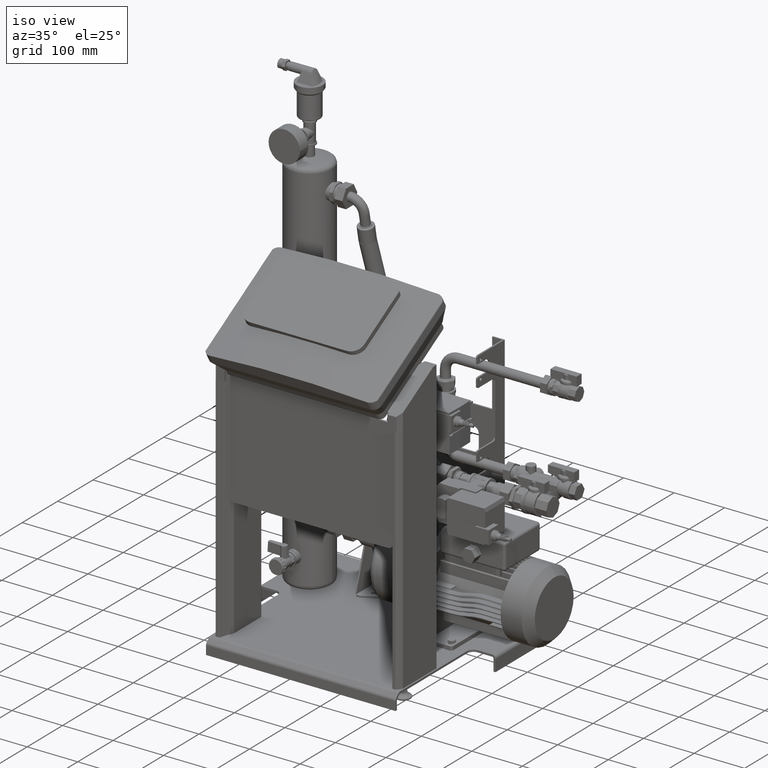
[diagram: clean part render]
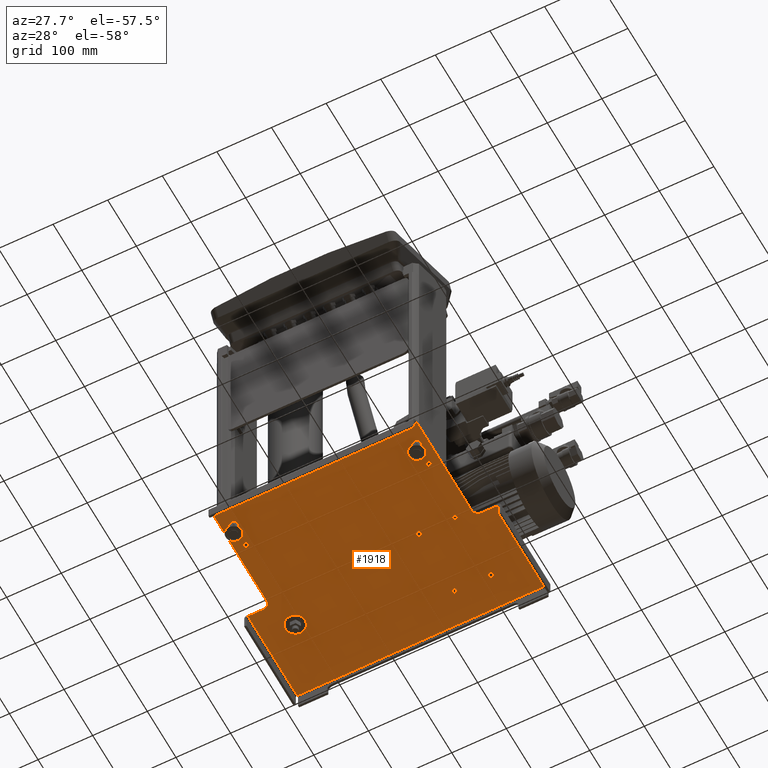
[diagram: tour spotlight — one face highlighted and labeled with its STEP entity id]
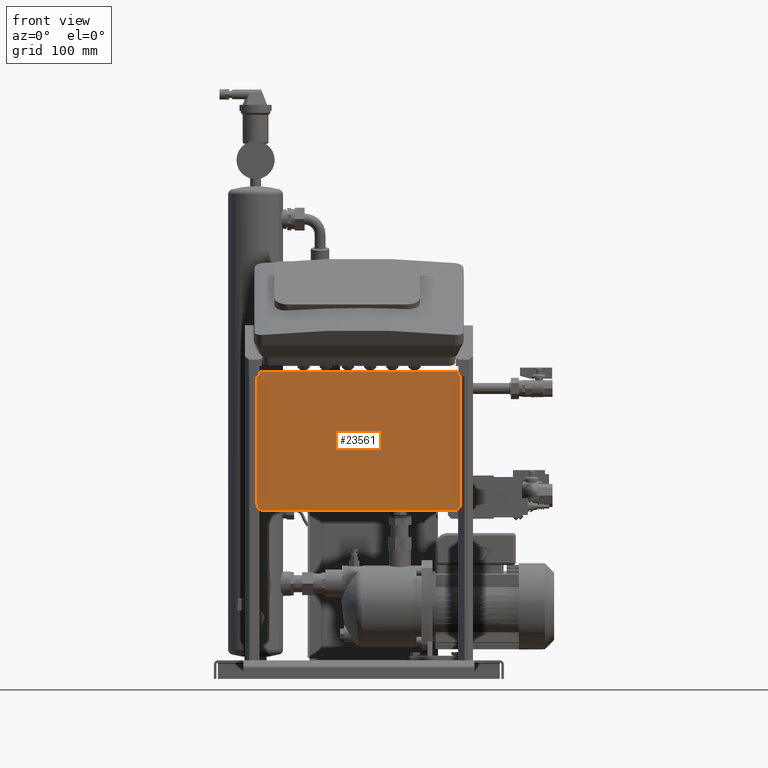
[diagram: tour spotlight — one face highlighted and labeled with its STEP entity id]
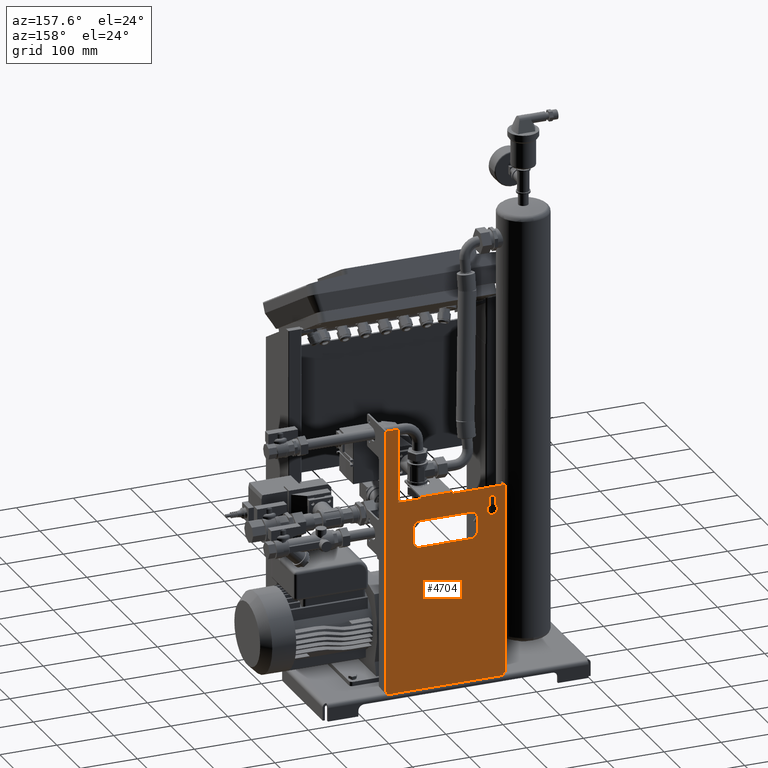
[diagram: tour spotlight — one face highlighted and labeled with its STEP entity id]
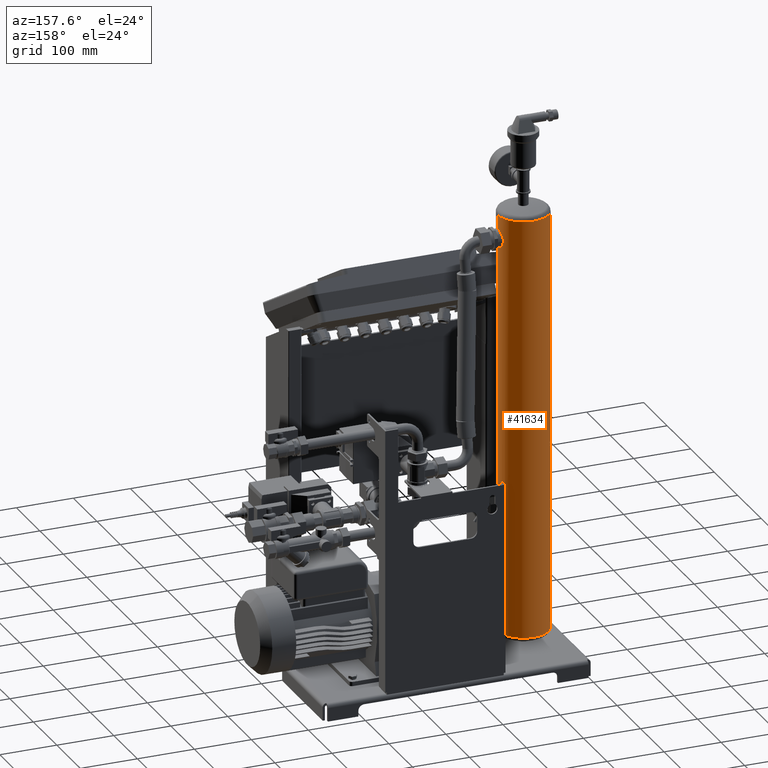
[diagram: tour spotlight — one face highlighted and labeled with its STEP entity id]
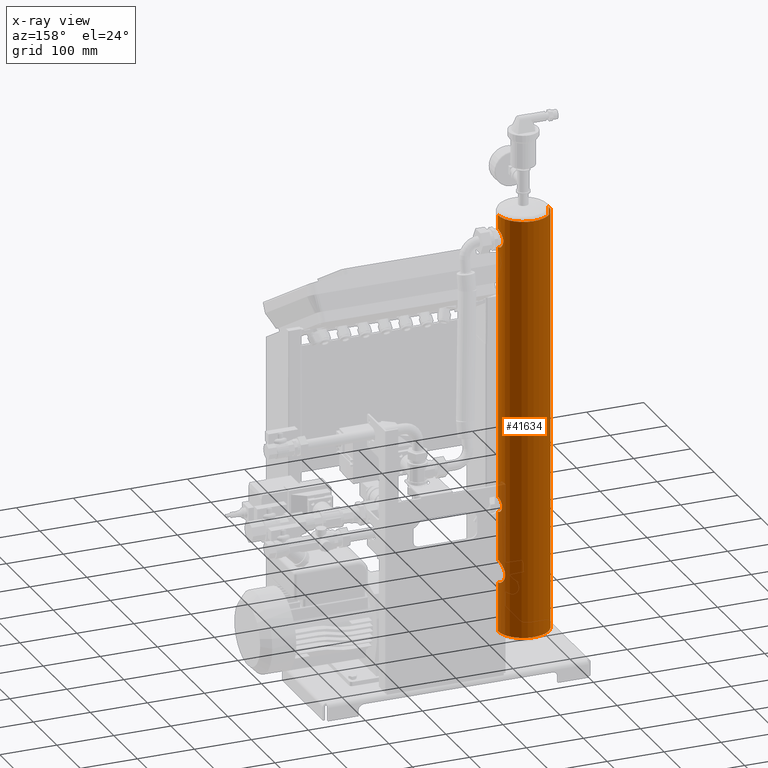
[diagram: x-ray of the same camera — body ghosted, this tour face saturated]
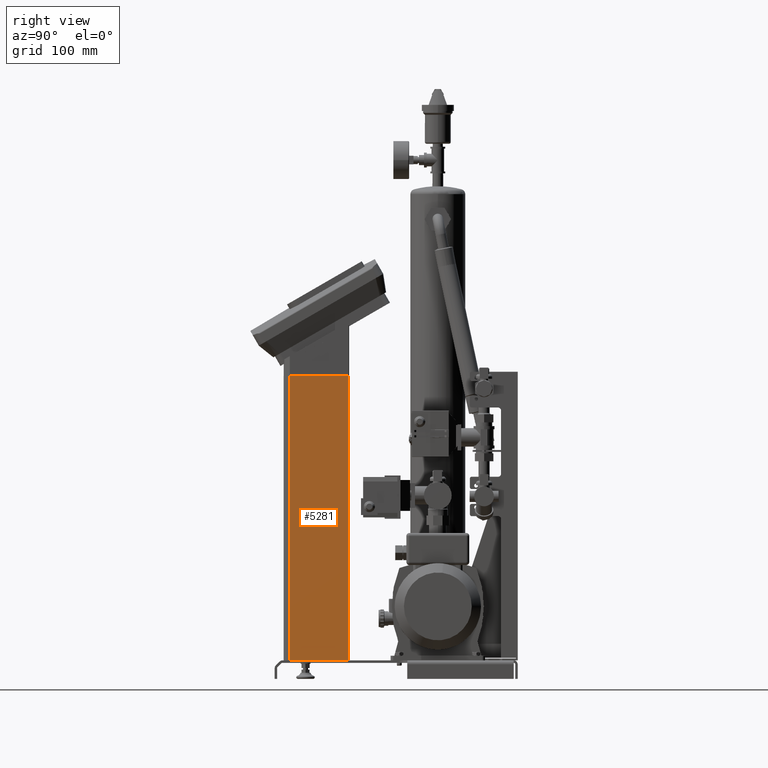
[diagram: tour spotlight — one face highlighted and labeled with its STEP entity id]
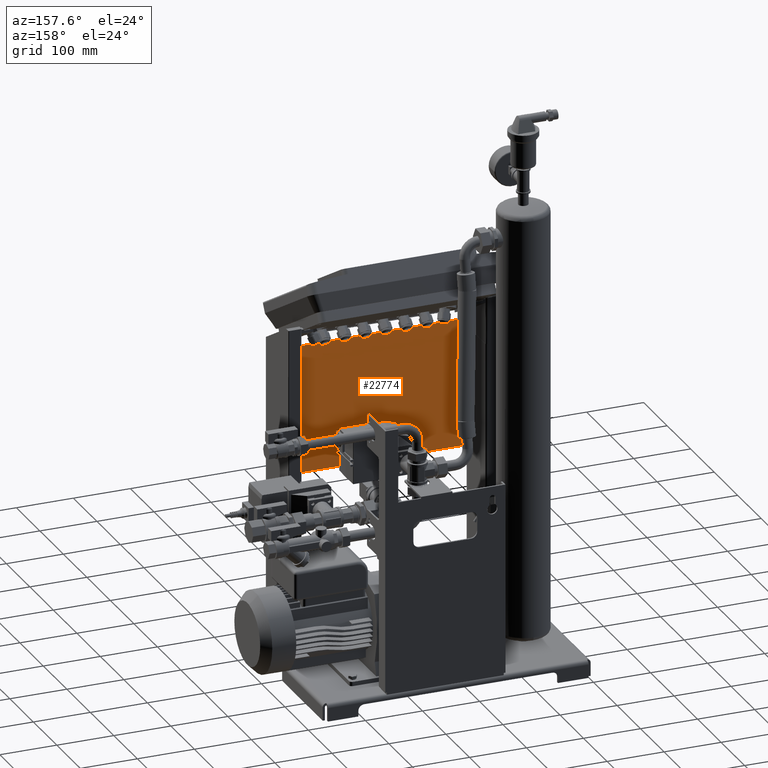
[diagram: tour spotlight — one face highlighted and labeled with its STEP entity id]
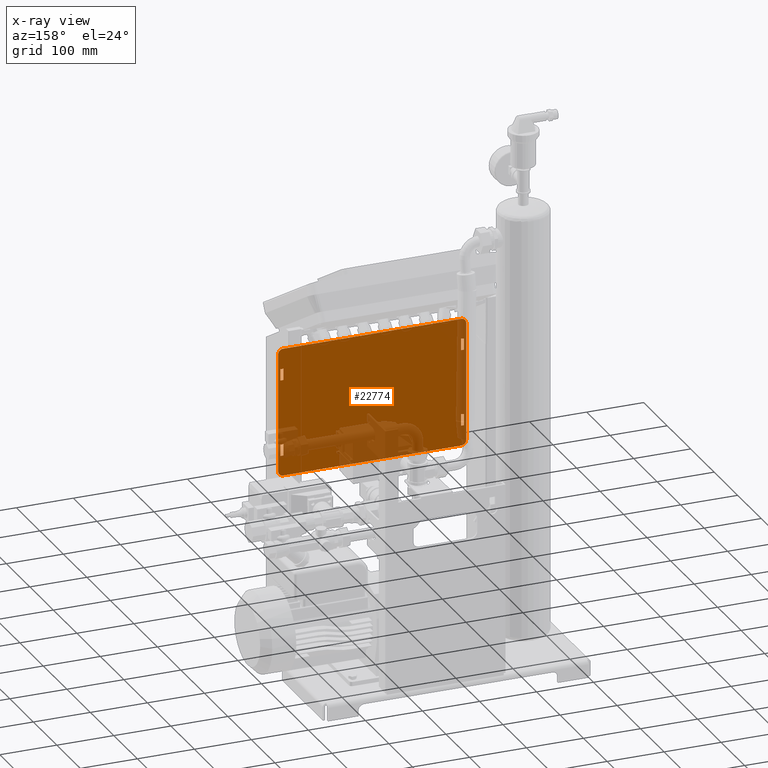
[diagram: x-ray of the same camera — body ghosted, this tour face saturated]
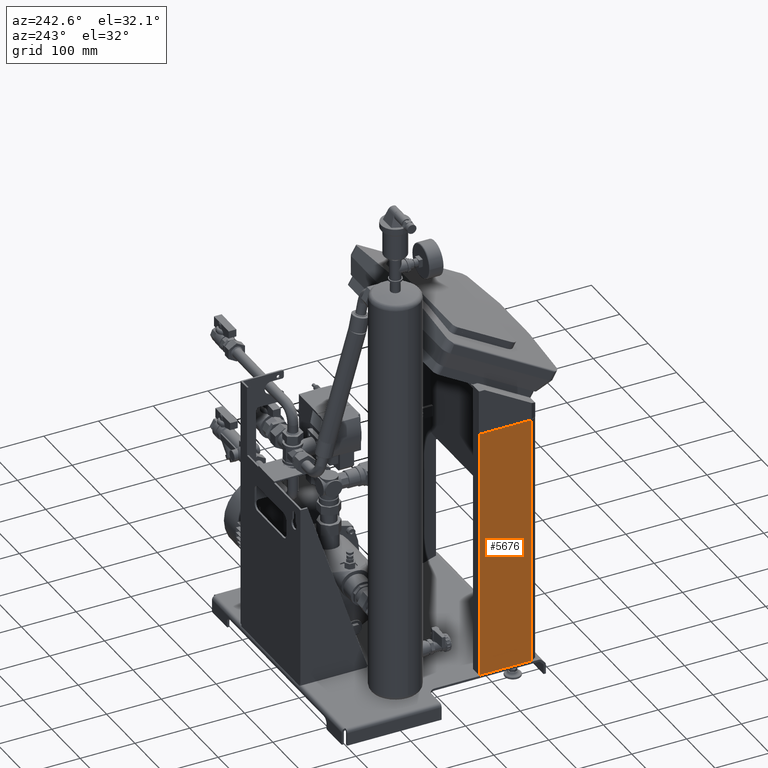
[diagram: tour spotlight — one face highlighted and labeled with its STEP entity id]
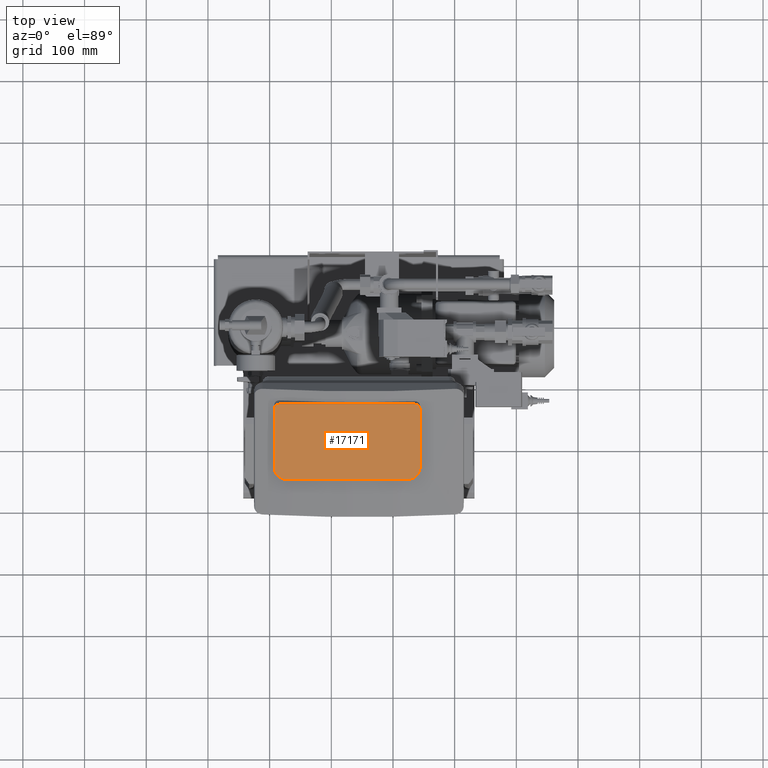
[diagram: tour spotlight — one face highlighted and labeled with its STEP entity id]
A machine part: a face-by-face anatomy tour. The part has 2768 B-rep faces; the first image is the clean iso view, then the 8 largest visible faces are spotlighted one at a time (largest first), each with its STEP entity span.

Face 1 — auxiliary view, entity #1918. In plain terms, the highlighted planar face has unit normal (0, 0, -1).
Definition (entity closure, byte-faithful):
#132=CARTESIAN_POINT('',(-118.8515066156703,-228.4074149234998,24.750000000000167));
#133=VERTEX_POINT('',#132);
#149=CARTESIAN_POINT('',(-126.74974967317695,-224.09258507608078,24.750000000000167));
#150=VERTEX_POINT('',#149);
#157=CARTESIAN_POINT('',(-122.80062814467027,-226.24999999979968,24.750000000000167));
#158=DIRECTION('',(0.0,0.0,1.0));
#159=DIRECTION('',(-1.0,0.0,0.0));
#160=AXIS2_PLACEMENT_3D('',#157,#158,#159);
#161=CIRCLE('',#160,4.5);
#162=EDGE_CURVE('',#133,#150,#161,.T.);
#174=CARTESIAN_POINT('',(216.1484933843297,-228.4074149234998,24.750000000000167));
#175=VERTEX_POINT('',#174);
#191=CARTESIAN_POINT('',(208.25025032682305,-224.09258507608078,24.750000000000167));
#192=VERTEX_POINT('',#191);
#199=CARTESIAN_POINT('',(212.19937185532973,-226.24999999979968,24.750000000000167));
#200=DIRECTION('',(0.0,0.0,1.0));
#201=DIRECTION('',(-1.0,0.0,0.0));
#202=AXIS2_PLACEMENT_3D('',#199,#200,#201);
#203=CIRCLE('',#202,4.5);
#204=EDGE_CURVE('',#175,#192,#203,.T.);
#216=CARTESIAN_POINT('',(216.1484933843297,-186.4074149234998,24.750000000000167));
#217=VERTEX_POINT('',#216);
#233=CARTESIAN_POINT('',(208.25025032682305,-182.09258507608078,24.750000000000167));
#234=VERTEX_POINT('',#233);
#241=CARTESIAN_POINT('',(212.19937185532973,-184.24999999979968,24.750000000000167));
#242=DIRECTION('',(0.0,0.0,1.0));
#243=DIRECTION('',(-1.0,0.0,0.0));
#244=AXIS2_PLACEMENT_3D('',#241,#242,#243);
#245=CIRCLE('',#244,4.5);
#246=EDGE_CURVE('',#217,#234,#245,.T.);
#258=CARTESIAN_POINT('',(-118.85150661616359,-186.40741492351859,24.750000000000167));
#259=VERTEX_POINT('',#258);
#275=CARTESIAN_POINT('',(-126.74974967367024,-182.09258507599975,24.750000000000167));
#276=VERTEX_POINT('',#275);
#283=CARTESIAN_POINT('',(-122.80062814467027,-184.24999999979968,24.750000000000167));
#284=DIRECTION('',(0.0,0.0,1.0));
#285=DIRECTION('',(-1.0,0.0,0.0));
#286=AXIS2_PLACEMENT_3D('',#283,#284,#285);
#287=CIRCLE('',#286,4.5);
#288=EDGE_CURVE('',#259,#276,#287,.T.);
#317=CARTESIAN_POINT('',(273.1993718553299,111.25000000000023,24.750000000000167));
#318=VERTEX_POINT('',#317);
#374=CARTESIAN_POINT('',(-183.8006281446701,111.25000000000023,24.750000000000167));
#375=VERTEX_POINT('',#374);
#376=CARTESIAN_POINT('',(273.1993718553299,111.25000000000023,24.750000000000167));
#377=DIRECTION('',(-1.0,0.0,0.0));
#378=VECTOR('',#377,457.0);
#379=LINE('',#376,#378);
#380=EDGE_CURVE('',#318,#375,#379,.T.);
#1072=CARTESIAN_POINT('',(-183.80062814467027,-61.249657658999695,24.750000000000167));
#1073=VERTEX_POINT('',#1072);
#1074=CARTESIAN_POINT('',(-183.80062814467027,111.25000000000023,24.750000000000167));
#1075=DIRECTION('',(0.0,-1.0,0.0));
#1076=VECTOR('',#1075,172.49965765899989);
#1077=LINE('',#1074,#1076);
#1078=EDGE_CURVE('',#375,#1073,#1077,.T.);
#1098=CARTESIAN_POINT('',(-122.80062814467027,-184.24999999979968,24.750000000000167));
#1099=DIRECTION('',(0.0,0.0,1.0));
#1100=DIRECTION('',(-1.0,0.0,0.0));
#1101=AXIS2_PLACEMENT_3D('',#1098,#1099,#1100);
#1102=CIRCLE('',#1101,4.5);
#1103=EDGE_CURVE('',#276,#259,#1102,.T.);
#1122=CARTESIAN_POINT('',(212.19937185532973,-184.24999999979968,24.750000000000167));
#1123=DIRECTION('',(0.0,0.0,1.0));
#1124=DIRECTION('',(-1.0,0.0,0.0));
#1125=AXIS2_PLACEMENT_3D('',#1122,#1123,#1124);
#1126=CIRCLE('',#1125,4.5);
#1127=EDGE_CURVE('',#234,#217,#1126,.T.);
#1146=CARTESIAN_POINT('',(273.19937185532973,-61.249657658999695,24.750000000000167));
#1147=VERTEX_POINT('',#1146);
#1155=CARTESIAN_POINT('',(273.19937185532973,-61.249657658999666,24.750000000000167));
#1156=DIRECTION('',(0.0,1.0,0.0));
#1157=VECTOR('',#1156,172.49965765899989);
#1158=LINE('',#1155,#1157);
#1159=EDGE_CURVE('',#1147,#318,#1158,.T.);
#1193=CARTESIAN_POINT('',(-155.30062814467027,-61.249657658999695,24.750000000000167));
#1194=VERTEX_POINT('',#1193);
#1195=CARTESIAN_POINT('',(-183.80062814467027,-61.249657658999695,24.750000000000167));
#1196=DIRECTION('',(1.0,0.0,0.0));
#1197=VECTOR('',#1196,28.5);
#1198=LINE('',#1195,#1197);
#1199=EDGE_CURVE('',#1073,#1194,#1198,.T.);
#1223=CARTESIAN_POINT('',(-142.80062814467027,-73.749657658999695,24.750000000000167));
#1224=VERTEX_POINT('',#1223);
#1225=CARTESIAN_POINT('',(-155.30062814467027,-73.749657658999695,24.750000000000167));
#1226=DIRECTION('',(0.0,0.0,1.0));
#1227=DIRECTION('',(-1.0,0.0,0.0));
#1228=AXIS2_PLACEMENT_3D('',#1225,#1226,#1227);
#1229=CIRCLE('',#1228,12.5);
#1230=EDGE_CURVE('',#1194,#1224,#1229,.F.);
#1256=CARTESIAN_POINT('',(-142.80062814467027,-263.55965765899964,24.750000000000167));
#1257=VERTEX_POINT('',#1256);
#1273=CARTESIAN_POINT('',(-142.80062814467027,-263.55965765899953,24.750000000000167));
#1274=DIRECTION('',(0.0,1.0,0.0));
#1275=VECTOR('',#1274,189.80999999999983);
#1276=LINE('',#1273,#1275);
#1277=EDGE_CURVE('',#1257,#1224,#1276,.T.);
#1423=CARTESIAN_POINT('',(232.19937185532973,-263.55965765899964,24.750000000000167));
#1424=VERTEX_POINT('',#1423);
#1446=CARTESIAN_POINT('',(232.19937185532973,-73.749657658999695,24.750000000000167));
#1447=VERTEX_POINT('',#1446);
#1448=CARTESIAN_POINT('',(232.19937185532973,-263.55965765899964,24.750000000000167));
#1449=DIRECTION('',(0.0,1.0,0.0));
#1450=VECTOR('',#1449,189.80999999999995);
#1451=LINE('',#1448,#1450);
#1452=EDGE_CURVE('',#1424,#1447,#1451,.T.);
#1477=CARTESIAN_POINT('',(244.69937185532973,-61.249657658999695,24.750000000000167));
#1478=VERTEX_POINT('',#1477);
#1479=CARTESIAN_POINT('',(244.69937185532973,-73.749657658999695,24.750000000000167));
#1480=DIRECTION('',(0.0,0.0,1.0));
#1481=DIRECTION('',(-1.0,0.0,0.0));
#1482=AXIS2_PLACEMENT_3D('',#1479,#1480,#1481);
#1483=CIRCLE('',#1482,12.5);
#1484=EDGE_CURVE('',#1447,#1478,#1483,.F.);
#1517=CARTESIAN_POINT('',(244.69937185532973,-61.249657658999695,24.750000000000167));
#1518=DIRECTION('',(1.0,0.0,0.0));
#1519=VECTOR('',#1518,28.5);
#1520=LINE('',#1517,#1519);
#1521=EDGE_CURVE('',#1478,#1147,#1520,.T.);
#1785=CARTESIAN_POINT('',(232.19937185532973,-263.55965765899964,24.750000000000167));
#1786=DIRECTION('',(-1.0,0.0,0.0));
#1787=VECTOR('',#1786,375.0);
#1788=LINE('',#1785,#1787);
#1789=EDGE_CURVE('',#1424,#1257,#1788,.T.);
#1826=CARTESIAN_POINT('',(212.19937185532973,-226.24999999979968,24.750000000000167));
#1827=DIRECTION('',(0.0,0.0,1.0));
#1828=DIRECTION('',(-1.0,0.0,0.0));
#1829=AXIS2_PLACEMENT_3D('',#1826,#1827,#1828);
#1830=CIRCLE('',#1829,4.5);
#1831=EDGE_CURVE('',#192,#175,#1830,.T.);
#1867=CARTESIAN_POINT('',(-122.80062814467027,-226.24999999979968,24.750000000000167));
#1868=DIRECTION('',(0.0,0.0,1.0));
#1869=DIRECTION('',(-1.0,0.0,0.0));
#1870=AXIS2_PLACEMENT_3D('',#1867,#1868,#1869);
#1871=CIRCLE('',#1870,4.5);
#1872=EDGE_CURVE('',#150,#133,#1871,.T.);
#1885=CARTESIAN_POINT('',(-30.300628144670085,87.750000000000227,24.750000000000167));
#1886=DIRECTION('',(0.0,0.0,-1.0));
#1887=DIRECTION('',(-1.0,0.0,0.0));
#1888=AXIS2_PLACEMENT_3D('',#1885,#1886,#1887);
#1889=PLANE('',#1888);
#1890=ORIENTED_EDGE('',*,*,#1159,.F.);
#1891=ORIENTED_EDGE('',*,*,#1521,.F.);
#1892=ORIENTED_EDGE('',*,*,#1484,.F.);
#1893=ORIENTED_EDGE('',*,*,#1452,.F.);
#1894=ORIENTED_EDGE('',*,*,#1789,.T.);
#1895=ORIENTED_EDGE('',*,*,#1277,.T.);
#1896=ORIENTED_EDGE('',*,*,#1230,.F.);
#1897=ORIENTED_EDGE('',*,*,#1199,.F.);
#1898=ORIENTED_EDGE('',*,*,#1078,.F.);
#1899=ORIENTED_EDGE('',*,*,#380,.F.);
#1900=EDGE_LOOP('',(#1890,#1891,#1892,#1893,#1894,#1895,#1896,#1897,#1898,#1899));
#1901=FACE_OUTER_BOUND('',#1900,.T.);
#1902=ORIENTED_EDGE('',*,*,#246,.T.);
#1903=ORIENTED_EDGE('',*,*,#1127,.T.);
#1904=EDGE_LOOP('',(#1902,#1903));
#1905=FACE_BOUND('',#1904,.T.);
#1906=ORIENTED_EDGE('',*,*,#1103,.T.);
#1907=ORIENTED_EDGE('',*,*,#288,.T.);
#1908=EDGE_LOOP('',(#1906,#1907));
#1909=FACE_BOUND('',#1908,.T.);
#1910=ORIENTED_EDGE('',*,*,#162,.T.);
#1911=ORIENTED_EDGE('',*,*,#1872,.T.);
#1912=EDGE_LOOP('',(#1910,#1911));
#1913=FACE_BOUND('',#1912,.T.);
#1914=ORIENTED_EDGE('',*,*,#204,.T.);
#1915=ORIENTED_EDGE('',*,*,#1831,.T.);
#1916=EDGE_LOOP('',(#1914,#1915));
#1917=FACE_BOUND('',#1916,.T.);
#1918=ADVANCED_FACE('',(#1901,#1905,#1909,#1913,#1917),#1889,.T.);

Face 2 — front view, entity #23561. In plain terms, the highlighted face is a freeform B-spline surface patch.
Definition (entity closure, byte-faithful):
#22367=CARTESIAN_POINT('',(209.69937148988339,-252.24915677017097,488.45007196527786));
#22368=VERTEX_POINT('',#22367);
#22377=CARTESIAN_POINT('',(209.69937148988362,-252.24915677017097,281.45007196527786));
#22378=VERTEX_POINT('',#22377);
#22379=CARTESIAN_POINT('',(209.69937148988339,-252.24915677017097,488.45007196527786));
#22380=DIRECTION('',(0.0,0.0,-1.0));
#22381=VECTOR('',#22380,207.0);
#22382=LINE('',#22379,#22381);
#22383=EDGE_CURVE('',#22368,#22378,#22382,.T.);
#22475=CARTESIAN_POINT('',(-120.30062851011638,-252.24915677017074,281.45007196527763));
#22476=VERTEX_POINT('',#22475);
#22485=CARTESIAN_POINT('',(-120.30062851011661,-252.24915677017074,488.45007196527763));
#22486=VERTEX_POINT('',#22485);
#22487=CARTESIAN_POINT('',(-120.30062851011638,-252.24915677017074,281.45007196527763));
#22488=DIRECTION('',(0.0,0.0,1.0));
#22489=VECTOR('',#22488,207.0);
#22490=LINE('',#22487,#22489);
#22491=EDGE_CURVE('',#22476,#22486,#22490,.T.);
#22847=CARTESIAN_POINT('',(-111.30062851011638,-252.24915677017074,272.45007196527763));
#22848=VERTEX_POINT('',#22847);
#22855=CARTESIAN_POINT('',(-111.30062851011638,-252.24915677017074,281.45007196527763));
#22856=DIRECTION('',(0.0,1.0,0.0));
#22857=DIRECTION('',(1.0,0.0,0.0));
#22858=AXIS2_PLACEMENT_3D('',#22855,#22856,#22857);
#22859=CIRCLE('',#22858,9.0);
#22860=EDGE_CURVE('',#22848,#22476,#22859,.T.);
#22972=CARTESIAN_POINT('',(-111.30062851011661,-252.24915677017074,497.45007196527763));
#22973=VERTEX_POINT('',#22972);
#22974=CARTESIAN_POINT('',(-111.30062851011661,-252.24915677017074,488.45007196527763));
#22975=DIRECTION('',(0.0,1.0,0.0));
#22976=DIRECTION('',(1.0,0.0,0.0));
#22977=AXIS2_PLACEMENT_3D('',#22974,#22975,#22976);
#22978=CIRCLE('',#22977,9.0);
#22979=EDGE_CURVE('',#22486,#22973,#22978,.T.);
#22998=CARTESIAN_POINT('',(200.69937148988339,-252.24915677017097,497.45007196527786));
#22999=VERTEX_POINT('',#22998);
#23000=CARTESIAN_POINT('',(200.69937148988339,-252.24915677017097,497.45007196527786));
#23001=DIRECTION('',(-1.0,0.0,0.0));
#23002=VECTOR('',#23001,312.0);
#23003=LINE('',#23000,#23002);
#23004=EDGE_CURVE('',#22973,#22999,#23003,.F.);
#23023=CARTESIAN_POINT('',(200.69937148988339,-252.24915677017097,488.45007196527786));
#23024=DIRECTION('',(0.0,1.0,0.0));
#23025=DIRECTION('',(1.0,0.0,0.0));
#23026=AXIS2_PLACEMENT_3D('',#23023,#23024,#23025);
#23027=CIRCLE('',#23026,9.0);
#23028=EDGE_CURVE('',#22999,#22368,#23027,.T.);
#23039=CARTESIAN_POINT('',(200.69937148988362,-252.24915677017097,272.45007196527786));
#23040=VERTEX_POINT('',#23039);
#23041=CARTESIAN_POINT('',(200.69937148988362,-252.24915677017097,281.45007196527786));
#23042=DIRECTION('',(0.0,1.0,0.0));
#23043=DIRECTION('',(1.0,0.0,0.0));
#23044=AXIS2_PLACEMENT_3D('',#23041,#23042,#23043);
#23045=CIRCLE('',#23044,9.0);
#23046=EDGE_CURVE('',#22378,#23040,#23045,.T.);
#23065=CARTESIAN_POINT('',(-111.30062851011638,-252.24915677017074,272.45007196527763));
#23066=DIRECTION('',(1.0,0.0,0.0));
#23067=VECTOR('',#23066,312.0);
#23068=LINE('',#23065,#23067);
#23069=EDGE_CURVE('',#23040,#22848,#23068,.F.);
#23546=CARTESIAN_POINT('',(209.69937148988362,-252.24915677017097,497.45007196527786));
#23547=CARTESIAN_POINT('',(209.69937148988362,-252.24915677017097,272.45007196527763));
#23548=CARTESIAN_POINT('',(-120.30062851011661,-252.24915677017097,497.45007196527786));
#23549=CARTESIAN_POINT('',(-120.30062851011661,-252.24915677017097,272.45007196527763));
#23550=B_SPLINE_SURFACE_WITH_KNOTS('',1,1,((#23546,#23548),(#23547,#23549)),.UNSPECIFIED.,.F.,.F.,.U.,(2,2),(2,2),(0.0,225.00000000000023),(0.0,330.00000000000023),.UNSPECIFIED.);
#23551=ORIENTED_EDGE('',*,*,#23028,.F.);
#23552=ORIENTED_EDGE('',*,*,#23004,.F.);
#23553=ORIENTED_EDGE('',*,*,#22979,.F.);
#23554=ORIENTED_EDGE('',*,*,#22491,.F.);
#23555=ORIENTED_EDGE('',*,*,#22860,.F.);
#23556=ORIENTED_EDGE('',*,*,#23069,.F.);
#23557=ORIENTED_EDGE('',*,*,#23046,.F.);
#23558=ORIENTED_EDGE('',*,*,#22383,.F.);
#23559=EDGE_LOOP('',(#23551,#23552,#23553,#23554,#23555,#23556,#23557,#23558));
#23560=FACE_OUTER_BOUND('',#23559,.T.);
#23561=ADVANCED_FACE('',(#23560),#23550,.F.);

Face 3 — auxiliary view, entity #4704. In plain terms, the highlighted planar face has unit normal (0, 1, 0).
Definition (entity closure, byte-faithful):
#2298=CARTESIAN_POINT('',(-38.3006281446701,117.74999999896124,32.750000000011823));
#2299=VERTEX_POINT('',#2298);
#2314=CARTESIAN_POINT('',(-38.300628144670057,117.74999999923375,366.74999999999284));
#2315=VERTEX_POINT('',#2314);
#2322=CARTESIAN_POINT('',(-38.300628144670057,117.74999999998784,32.750000000011823));
#2323=DIRECTION('',(0.0,-2.257739E-012,1.0));
#2324=VECTOR('',#2323,333.99999999998101);
#2325=LINE('',#2322,#2324);
#2326=EDGE_CURVE('',#2299,#2315,#2325,.T.);
#2546=CARTESIAN_POINT('',(169.69937185534138,117.74999999896124,28.750000000008697));
#2547=VERTEX_POINT('',#2546);
#2554=CARTESIAN_POINT('',(169.69937185534138,117.74999999896124,32.750000000011823));
#2555=VERTEX_POINT('',#2554);
#2556=CARTESIAN_POINT('',(169.69937185534138,117.74999999998785,32.750000000011823));
#2557=DIRECTION('',(0.0,2.259526E-012,-1.0));
#2558=VECTOR('',#2557,4.000000000003126);
#2559=LINE('',#2556,#2558);
#2560=EDGE_CURVE('',#2555,#2547,#2559,.T.);
#2675=CARTESIAN_POINT('',(-35.300628144661914,117.74999999896124,28.750000000008697));
#2676=VERTEX_POINT('',#2675);
#2691=CARTESIAN_POINT('',(-35.300628144661914,117.74999999896124,32.750000000011823));
#2692=VERTEX_POINT('',#2691);
#2699=CARTESIAN_POINT('',(-35.300628144661914,117.74999999999689,28.750000000008697));
#2700=DIRECTION('',(0.0,-2.259526E-012,1.0));
#2701=VECTOR('',#2700,4.000000000003126);
#2702=LINE('',#2699,#2701);
#2703=EDGE_CURVE('',#2676,#2692,#2702,.T.);
#3106=CARTESIAN_POINT('',(172.69937185534957,117.74999999896124,32.750000000011823));
#3107=VERTEX_POINT('',#3106);
#3122=CARTESIAN_POINT('',(172.69937185534957,117.74999999998784,32.750000000011823));
#3123=DIRECTION('',(-1.0,0.0,0.0));
#3124=VECTOR('',#3123,3.000000000008186);
#3125=LINE('',#3122,#3124);
#3126=EDGE_CURVE('',#3107,#2555,#3125,.T.);
#3932=CARTESIAN_POINT('',(172.69937185532996,117.74999999896136,496.7500000000087));
#3933=VERTEX_POINT('',#3932);
#3934=CARTESIAN_POINT('',(172.6993718553299,117.74999999896136,32.750000000011823));
#3935=DIRECTION('',(0.0,0.0,1.0));
#3936=VECTOR('',#3935,463.99999999999687);
#3937=LINE('',#3934,#3936);
#3938=EDGE_CURVE('',#3107,#3933,#3937,.T.);
#4155=CARTESIAN_POINT('',(109.69937185532993,117.74999999923386,369.74999999999278));
#4156=VERTEX_POINT('',#4155);
#4163=CARTESIAN_POINT('',(54.699371855329929,117.74999999923386,369.74999999999278));
#4164=VERTEX_POINT('',#4163);
#4165=CARTESIAN_POINT('',(54.699371855329929,117.74999999923386,369.74999999999278));
#4166=DIRECTION('',(1.0,0.0,0.0));
#4167=VECTOR('',#4166,55.0);
#4168=LINE('',#4165,#4167);
#4169=EDGE_CURVE('',#4164,#4156,#4168,.T.);
#4193=CARTESIAN_POINT('',(54.699371855329929,117.74999999923386,366.74999999999278));
#4194=VERTEX_POINT('',#4193);
#4195=CARTESIAN_POINT('',(54.699371855329929,117.74999999923386,369.74999999999278));
#4196=DIRECTION('',(0.0,0.0,-1.0));
#4197=VECTOR('',#4196,3.0);
#4198=LINE('',#4195,#4197);
#4199=EDGE_CURVE('',#4164,#4194,#4198,.T.);
#4218=CARTESIAN_POINT('',(109.69937185532993,117.74999999923386,366.74999999999278));
#4219=VERTEX_POINT('',#4218);
#4226=CARTESIAN_POINT('',(109.69937185532993,117.74999999923386,369.74999999999278));
#4227=DIRECTION('',(0.0,0.0,-1.0));
#4228=VECTOR('',#4227,3.0);
#4229=LINE('',#4226,#4228);
#4230=EDGE_CURVE('',#4156,#4219,#4229,.T.);
#4243=CARTESIAN_POINT('',(149.69937185532996,117.74999999896136,366.7500000000087));
#4244=VERTEX_POINT('',#4243);
#4251=CARTESIAN_POINT('',(149.69937185532996,117.74999999896136,366.7500000000087));
#4252=DIRECTION('',(-1.0,0.0,0.0));
#4253=VECTOR('',#4252,40.000000000000028);
#4254=LINE('',#4251,#4253);
#4255=EDGE_CURVE('',#4244,#4219,#4254,.T.);
#4265=CARTESIAN_POINT('',(-20.300628144670071,117.7499999993172,334.23331477400859));
#4266=VERTEX_POINT('',#4265);
#4274=CARTESIAN_POINT('',(-10.300628144670071,117.7499999993172,334.23331477400859));
#4275=VERTEX_POINT('',#4274);
#4282=CARTESIAN_POINT('',(-15.300628144670071,117.74999999896136,326.75000000000858));
#4283=DIRECTION('',(0.0,-1.0,0.0));
#4284=DIRECTION('',(-1.0,0.0,0.0));
#4285=AXIS2_PLACEMENT_3D('',#4282,#4283,#4284);
#4286=CIRCLE('',#4285,9.0);
#4287=EDGE_CURVE('',#4266,#4275,#4286,.T.);
#4297=CARTESIAN_POINT('',(-10.300628144670071,117.7499999993172,346.75000000000864));
#4298=VERTEX_POINT('',#4297);
#4306=CARTESIAN_POINT('',(-20.300628144670071,117.7499999993172,346.75000000000864));
#4307=VERTEX_POINT('',#4306);
#4314=CARTESIAN_POINT('',(-15.300628144670071,117.74999999896136,346.75000000000858));
#4315=DIRECTION('',(0.0,-1.0,0.0));
#4316=DIRECTION('',(-1.0,0.0,0.0));
#4317=AXIS2_PLACEMENT_3D('',#4314,#4315,#4316);
#4318=CIRCLE('',#4317,5.0);
#4319=EDGE_CURVE('',#4298,#4307,#4318,.T.);
#4332=CARTESIAN_POINT('',(-20.300628144670071,117.74999999896136,346.75000000000864));
#4333=DIRECTION('',(0.0,0.0,-1.0));
#4334=VECTOR('',#4333,12.51668522600005);
#4335=LINE('',#4332,#4334);
#4336=EDGE_CURVE('',#4307,#4266,#4335,.T.);
#4349=CARTESIAN_POINT('',(-10.300628144670071,117.74999999896136,334.23331477400859));
#4350=DIRECTION('',(0.0,0.0,1.0));
#4351=VECTOR('',#4350,12.51668522600005);
#4352=LINE('',#4349,#4351);
#4353=EDGE_CURVE('',#4275,#4298,#4352,.T.);
#4363=CARTESIAN_POINT('',(123.19937185532993,117.74999999935665,316.75000000000853));
#4364=VERTEX_POINT('',#4363);
#4365=CARTESIAN_POINT('',(112.19937185532993,117.74999999935665,327.75000000000853));
#4366=VERTEX_POINT('',#4365);
#4367=CARTESIAN_POINT('',(112.19937185532993,117.74999999896136,316.75000000000853));
#4368=DIRECTION('',(0.0,-1.0,0.0));
#4369=DIRECTION('',(0.707106781186548,0.0,0.707106781186548));
#4370=AXIS2_PLACEMENT_3D('',#4367,#4368,#4369);
#4371=CIRCLE('',#4370,11.0);
#4372=EDGE_CURVE('',#4364,#4366,#4371,.T.);
#4397=CARTESIAN_POINT('',(22.199371855329929,117.74999999935665,327.75000000000853));
#4398=VERTEX_POINT('',#4397);
#4405=CARTESIAN_POINT('',(112.19937185532993,117.74999999896136,327.75000000000853));
#4406=DIRECTION('',(-1.0,0.0,0.0));
#4407=VECTOR('',#4406,90.0);
#4408=LINE('',#4405,#4407);
#4409=EDGE_CURVE('',#4366,#4398,#4408,.T.);
#4419=CARTESIAN_POINT('',(112.19937185532993,117.74999999935665,280.75000000000853));
#4420=VERTEX_POINT('',#4419);
#4421=CARTESIAN_POINT('',(123.19937185532993,117.74999999935665,291.75000000000853));
#4422=VERTEX_POINT('',#4421);
#4423=CARTESIAN_POINT('',(112.19937185532993,117.74999999896136,291.75000000000853));
#4424=DIRECTION('',(0.0,-1.0,0.0));
#4425=DIRECTION('',(0.707106781186548,0.0,-0.707106781186548));
#4426=AXIS2_PLACEMENT_3D('',#4423,#4424,#4425);
#4427=CIRCLE('',#4426,11.0);
#4428=EDGE_CURVE('',#4420,#4422,#4427,.T.);
#4452=CARTESIAN_POINT('',(22.199371855329929,117.74999999935665,280.75000000000853));
#4453=VERTEX_POINT('',#4452);
#4454=CARTESIAN_POINT('',(22.199371855329929,117.74999999896136,280.75000000000853));
#4455=DIRECTION('',(1.0,0.0,0.0));
#4456=VECTOR('',#4455,90.0);
#4457=LINE('',#4454,#4456);
#4458=EDGE_CURVE('',#4453,#4420,#4457,.T.);
#4475=CARTESIAN_POINT('',(11.199371855329929,117.74999999935665,291.75000000000853));
#4476=VERTEX_POINT('',#4475);
#4477=CARTESIAN_POINT('',(22.199371855329929,117.74999999896136,291.75000000000853));
#4478=DIRECTION('',(0.0,-1.0,0.0));
#4479=DIRECTION('',(-0.707106781186548,0.0,-0.707106781186548));
#4480=AXIS2_PLACEMENT_3D('',#4477,#4478,#4479);
#4481=CIRCLE('',#4480,11.0);
#4482=EDGE_CURVE('',#4476,#4453,#4481,.T.);
#4501=CARTESIAN_POINT('',(11.199371855329929,117.74999999935665,316.75000000000853));
#4502=VERTEX_POINT('',#4501);
#4503=CARTESIAN_POINT('',(11.199371855329929,117.74999999896136,316.75000000000853));
#4504=DIRECTION('',(0.0,0.0,-1.0));
#4505=VECTOR('',#4504,25.0);
#4506=LINE('',#4503,#4505);
#4507=EDGE_CURVE('',#4502,#4476,#4506,.T.);
#4524=CARTESIAN_POINT('',(22.199371855329929,117.74999999896136,316.75000000000853));
#4525=DIRECTION('',(0.0,-1.0,0.0));
#4526=DIRECTION('',(-0.707106781186548,0.0,0.707106781186548));
#4527=AXIS2_PLACEMENT_3D('',#4524,#4525,#4526);
#4528=CIRCLE('',#4527,11.0);
#4529=EDGE_CURVE('',#4398,#4502,#4528,.T.);
#4543=CARTESIAN_POINT('',(123.19937185532994,117.74999999896136,291.75000000000853));
#4544=DIRECTION('',(0.0,0.0,1.0));
#4545=VECTOR('',#4544,25.0);
#4546=LINE('',#4543,#4545);
#4547=EDGE_CURVE('',#4422,#4364,#4546,.T.);
#4560=CARTESIAN_POINT('',(-35.300628144661914,117.74999999896136,28.750000000008697));
#4561=DIRECTION('',(1.0,0.0,0.0));
#4562=VECTOR('',#4561,205.0000000000033);
#4563=LINE('',#4560,#4562);
#4564=EDGE_CURVE('',#2676,#2547,#4563,.T.);
#4593=CARTESIAN_POINT('',(149.69937185532996,117.74999999896136,496.7500000000087));
#4594=VERTEX_POINT('',#4593);
#4595=CARTESIAN_POINT('',(172.69937185532996,117.74999999896136,496.7500000000087));
#4596=DIRECTION('',(-1.0,0.0,0.0));
#4597=VECTOR('',#4596,23.0);
#4598=LINE('',#4595,#4597);
#4599=EDGE_CURVE('',#3933,#4594,#4598,.T.);
#4622=CARTESIAN_POINT('',(149.69937185532996,117.74999999896136,496.7500000000087));
#4623=DIRECTION('',(0.0,0.0,-1.0));
#4624=VECTOR('',#4623,130.0);
#4625=LINE('',#4622,#4624);
#4626=EDGE_CURVE('',#4594,#4244,#4625,.T.);
#4653=CARTESIAN_POINT('',(54.699371855329929,117.74999999923375,366.74999999999284));
#4654=DIRECTION('',(-1.0,0.0,0.0));
#4655=VECTOR('',#4654,92.999999999999986);
#4656=LINE('',#4653,#4655);
#4657=EDGE_CURVE('',#4194,#2315,#4656,.T.);
#4662=CARTESIAN_POINT('',(-35.300628144670057,117.74999999998784,32.750000000018574));
#4663=DIRECTION('',(0.0,1.0,2.257739E-012));
#4664=DIRECTION('',(0.0,-2.257739E-012,1.0));
#4665=AXIS2_PLACEMENT_3D('',#4662,#4663,#4664);
#4666=PLANE('',#4665);
#4667=CARTESIAN_POINT('',(-35.300628144661914,117.74999999998784,32.750000000011823));
#4668=DIRECTION('',(-1.0,0.0,0.0));
#4669=VECTOR('',#4668,3.000000000008186);
#4670=LINE('',#4667,#4669);
#4671=EDGE_CURVE('',#2692,#2299,#4670,.T.);
#4672=ORIENTED_EDGE('',*,*,#4671,.T.);
#4673=ORIENTED_EDGE('',*,*,#2326,.T.);
#4674=ORIENTED_EDGE('',*,*,#4657,.F.);
#4675=ORIENTED_EDGE('',*,*,#4199,.F.);
#4676=ORIENTED_EDGE('',*,*,#4169,.T.);
#4677=ORIENTED_EDGE('',*,*,#4230,.T.);
#4678=ORIENTED_EDGE('',*,*,#4255,.F.);
#4679=ORIENTED_EDGE('',*,*,#4626,.F.);
#4680=ORIENTED_EDGE('',*,*,#4599,.F.);
#4681=ORIENTED_EDGE('',*,*,#3938,.F.);
#4682=ORIENTED_EDGE('',*,*,#3126,.T.);
#4683=ORIENTED_EDGE('',*,*,#2560,.T.);
#4684=ORIENTED_EDGE('',*,*,#4564,.F.);
#4685=ORIENTED_EDGE('',*,*,#2703,.T.);
#4686=EDGE_LOOP('',(#4672,#4673,#4674,#4675,#4676,#4677,#4678,#4679,#4680,#4681,#4682,#4683,#4684,#4685));
#4687=FACE_OUTER_BOUND('',#4686,.T.);
#4688=ORIENTED_EDGE('',*,*,#4319,.T.);
#4689=ORIENTED_EDGE('',*,*,#4336,.T.);
#4690=ORIENTED_EDGE('',*,*,#4287,.T.);
#4691=ORIENTED_EDGE('',*,*,#4353,.T.);
#4692=EDGE_LOOP('',(#4688,#4689,#4690,#4691));
#4693=FACE_BOUND('',#4692,.T.);
#4694=ORIENTED_EDGE('',*,*,#4428,.T.);
#4695=ORIENTED_EDGE('',*,*,#4547,.T.);
#4696=ORIENTED_EDGE('',*,*,#4372,.T.);
#4697=ORIENTED_EDGE('',*,*,#4409,.T.);
#4698=ORIENTED_EDGE('',*,*,#4529,.T.);
#4699=ORIENTED_EDGE('',*,*,#4507,.T.);
#4700=ORIENTED_EDGE('',*,*,#4482,.T.);
#4701=ORIENTED_EDGE('',*,*,#4458,.T.);
#4702=EDGE_LOOP('',(#4694,#4695,#4696,#4697,#4698,#4699,#4700,#4701));
#4703=FACE_BOUND('',#4702,.T.);
#4704=ADVANCED_FACE('',(#4687,#4693,#4703),#4666,.T.);

Face 4 — auxiliary view, entity #41634. An x-ray twin of the same camera follows (body ghosted, this face saturated) — the face is partly hidden behind the body. In plain terms, the highlighted cylindrical surface (edge-blend (fillet) strip) has radius 44.45 mm, axis along (0, 0, 1).
Definition (entity closure, byte-faithful):
#41379=CARTESIAN_POINT('',(-122.75062814467046,32.700000000000003,784.65299999999968));
#41380=VERTEX_POINT('',#41379);
#41388=CARTESIAN_POINT('',(-167.20062814467053,-11.75,784.65299999999968));
#41389=VERTEX_POINT('',#41388);
#41390=CARTESIAN_POINT('',(-122.75062814467046,-11.75,784.65299999999968));
#41391=DIRECTION('',(0.0,0.0,1.0));
#41392=DIRECTION('',(-1.0,0.0,0.0));
#41393=AXIS2_PLACEMENT_3D('',#41390,#41391,#41392);
#41394=CIRCLE('',#41393,44.450000000000017);
#41395=EDGE_CURVE('',#41380,#41389,#41394,.T.);
#41407=CARTESIAN_POINT('',(-122.75062814467037,-11.75,9.227999999999781));
#41408=DIRECTION('',(0.0,0.0,1.0));
#41409=DIRECTION('',(-1.0,0.0,0.0));
#41410=AXIS2_PLACEMENT_3D('',#41407,#41408,#41409);
#41411=CYLINDRICAL_SURFACE('',#41410,44.450000000000003);
#41412=CARTESIAN_POINT('',(-167.20062814467036,-11.75,46.152999999999778));
#41413=VERTEX_POINT('',#41412);
#41414=CARTESIAN_POINT('',(-167.20062814467053,-11.75,784.65299999999968));
#41415=DIRECTION('',(0.0,0.0,-1.0));
#41416=VECTOR('',#41415,738.49999999999989);
#41417=LINE('',#41414,#41416);
#41418=EDGE_CURVE('',#41389,#41413,#41417,.T.);
#41419=ORIENTED_EDGE('',*,*,#41418,.F.);
#41420=ORIENTED_EDGE('',*,*,#41395,.F.);
#41421=CARTESIAN_POINT('',(-78.300628144670412,-11.749999999999972,784.65299999999968));
#41422=VERTEX_POINT('',#41421);
#41423=CARTESIAN_POINT('',(-122.75062814467046,-11.75,784.65299999999968));
#41424=DIRECTION('',(0.0,0.0,1.0));
#41425=DIRECTION('',(-1.0,0.0,0.0));
#41426=AXIS2_PLACEMENT_3D('',#41423,#41424,#41425);
#41427=CIRCLE('',#41426,44.450000000000017);
#41428=EDGE_CURVE('',#41422,#41380,#41427,.T.);
#41429=ORIENTED_EDGE('',*,*,#41428,.F.);
#41430=CARTESIAN_POINT('',(-78.300628144670384,-11.750000000000213,759.99299999999971));
#41431=VERTEX_POINT('',#41430);
#41432=CARTESIAN_POINT('',(-78.300628144670412,-11.749999999999972,784.65299999999968));
#41433=DIRECTION('',(0.0,0.0,-1.0));
#41434=VECTOR('',#41433,24.659999999999968);
#41435=LINE('',#41432,#41434);
#41436=EDGE_CURVE('',#41422,#41431,#41435,.T.);
#41437=ORIENTED_EDGE('',*,*,#41436,.T.);
#41438=CARTESIAN_POINT('',(-81.241683325511246,4.149999999999636,744.09299999999973));
#41439=VERTEX_POINT('',#41438);
#41440=CARTESIAN_POINT('',(-78.300628144670384,-11.750000000000213,759.99299999999971));
#41441=CARTESIAN_POINT('',(-78.300628144670384,-10.742354685906989,759.99299999999971));
#41442=CARTESIAN_POINT('',(-78.335760646197599,-9.703082870519211,759.89566449317113));
#41443=CARTESIAN_POINT('',(-78.478863273275635,-7.641331138535861,759.48887331083563));
#41444=CARTESIAN_POINT('',(-78.586743715740681,-6.618822196835936,759.17953320871288));
#41445=CARTESIAN_POINT('',(-78.858194861564783,-4.662548133800556,758.36536815020906));
#41446=CARTESIAN_POINT('',(-79.021780819533205,-3.727064613887706,757.85989649644694));
#41447=CARTESIAN_POINT('',(-79.374257056223627,-1.999614786916936,756.69557590779687));
#41448=CARTESIAN_POINT('',(-79.562832758390272,-1.207643504155385,756.03663914588719));
#41449=CARTESIAN_POINT('',(-79.929294530661139,0.19407783281531,754.63491780891616));
#41450=CARTESIAN_POINT('',(-80.12039648211973,0.853068484648247,753.8427378008065));
#41451=CARTESIAN_POINT('',(-80.481984897761322,2.017199604771122,752.11540221923883));
#41452=CARTESIAN_POINT('',(-80.652105223609396,2.52244701488053,751.18024209501311));
#41453=CARTESIAN_POINT('',(-80.936872511144571,3.336359292221463,749.22461596219262));
#41454=CARTESIAN_POINT('',(-81.051430785800079,3.645669550257477,748.20242200622977));
#41455=CARTESIAN_POINT('',(-81.203918591640388,4.052551271051925,746.14077033970023));
#41456=CARTESIAN_POINT('',(-81.241683325511246,4.149999999999636,745.10127622296511));
#41457=CARTESIAN_POINT('',(-81.241683325511246,4.149999999999636,744.09299999999973));
#41458=B_SPLINE_CURVE_WITH_KNOTS('',3,(#41440,#41441,#41442,#41443,#41444,#41445,#41446,#41447,#41448,#41449,#41450,#41451,#41452,#41453,#41454,#41455,#41456,#41457),.UNSPECIFIED.,.F.,.U.,(4,2,2,2,2,2,2,2,4),(72.573175334091445,75.596111276370209,78.619047218648973,81.641983160927765,84.664919103206529,87.689747772102038,90.714576440997575,93.739405109893085,96.764233778788622),.UNSPECIFIED.);
#41459=EDGE_CURVE('',#41431,#41439,#41458,.T.);
#41460=ORIENTED_EDGE('',*,*,#41459,.T.);
#41461=CARTESIAN_POINT('',(-78.300628144670384,-11.750000000000213,728.19299999999998));
#41462=VERTEX_POINT('',#41461);
#41463=CARTESIAN_POINT('',(-81.241683325511246,4.15,744.09299999999973));
#41464=CARTESIAN_POINT('',(-81.241683325511246,4.149999999999636,743.08472377703492));
#41465=CARTESIAN_POINT('',(-81.203918591640388,4.052551271051925,742.04522966029958));
#41466=CARTESIAN_POINT('',(-81.051430785800079,3.645669550257477,739.98357799376993));
#41467=CARTESIAN_POINT('',(-80.936872511144571,3.336359292221463,738.96138403780731));
#41468=CARTESIAN_POINT('',(-80.652105223609396,2.52244701488053,737.00575790498681));
#41469=CARTESIAN_POINT('',(-80.481984897761322,2.017199604771122,736.07059778076098));
#41470=CARTESIAN_POINT('',(-80.120396482119901,0.853068484648247,734.34326219919342));
#41471=CARTESIAN_POINT('',(-79.929294530661139,0.19407783281531,733.55108219108354));
#41472=CARTESIAN_POINT('',(-79.562832758390272,-1.207643504155385,732.14936085411273));
#41473=CARTESIAN_POINT('',(-79.374257056223627,-1.999614786916936,731.49042409220317));
#41474=CARTESIAN_POINT('',(-79.021780819533205,-3.727064613887706,730.32610350355299));
#41475=CARTESIAN_POINT('',(-78.858194861564783,-4.662548133800556,729.82063184979074));
#41476=CARTESIAN_POINT('',(-78.586743715740681,-6.618822196835936,729.00646679128681));
#41477=CARTESIAN_POINT('',(-78.478863273275635,-7.641331138535861,728.69712668916418));
#41478=CARTESIAN_POINT('',(-78.335760646197599,-9.703082870519211,728.29033550682857));
#41479=CARTESIAN_POINT('',(-78.300628144670384,-10.742354685906992,728.19299999999998));
#41480=CARTESIAN_POINT('',(-78.300628144670384,-11.750000000000213,728.19299999999998));
#41481=B_SPLINE_CURVE_WITH_KNOTS('',3,(#41463,#41464,#41465,#41466,#41467,#41468,#41469,#41470,#41471,#41472,#41473,#41474,#41475,#41476,#41477,#41478,#41479,#41480),.UNSPECIFIED.,.F.,.U.,(4,2,2,2,2,2,2,2,4),(0.0,3.024828668895515,6.049657337791031,9.074486006686545,12.099314675582059,15.122250617860834,18.145186560139603,21.168122502418367,24.191058444697145),.UNSPECIFIED.);
#41482=EDGE_CURVE('',#41439,#41462,#41481,.T.);
#41483=ORIENTED_EDGE('',*,*,#41482,.T.);
#41484=CARTESIAN_POINT('',(-78.300628144670327,-11.750000000000227,284.49299999999994));
#41485=VERTEX_POINT('',#41484);
#41486=CARTESIAN_POINT('',(-78.300628144670384,-11.750000000000213,728.19299999999998));
#41487=DIRECTION('',(0.0,0.0,-1.0));
#41488=VECTOR('',#41487,443.7000000000001);
#41489=LINE('',#41486,#41488);
#41490=EDGE_CURVE('',#41462,#41485,#41489,.T.);
#41491=ORIENTED_EDGE('',*,*,#41490,.T.);
#41492=CARTESIAN_POINT('',(-80.213673622749099,1.149999999999636,271.59299999999996));
#41493=VERTEX_POINT('',#41492);
#41494=CARTESIAN_POINT('',(-78.300628144670327,-11.750000000000227,284.49299999999994));
#41495=CARTESIAN_POINT('',(-78.300628144670327,-10.935145994970071,284.49299999999999));
#41496=CARTESIAN_POINT('',(-78.323612628266574,-10.09393575733975,284.41454567518076));
#41497=CARTESIAN_POINT('',(-78.417379930039147,-8.423536531038735,284.08576682986103));
#41498=CARTESIAN_POINT('',(-78.488103370839468,-7.594327305234401,283.83552820073334));
#41499=CARTESIAN_POINT('',(-78.666017632538768,-6.006496629869616,283.17580103594605));
#41500=CARTESIAN_POINT('',(-78.773207925332258,-5.246524345031503,282.76578851483544));
#41501=CARTESIAN_POINT('',(-79.00387139355658,-3.842411334218923,281.82024010998623));
#41502=CARTESIAN_POINT('',(-79.1271283175044,-3.198281040220536,281.28463599483268));
#41503=CARTESIAN_POINT('',(-79.366170840496721,-2.058216120309226,280.14457107492188));
#41504=CARTESIAN_POINT('',(-79.490485822727635,-1.522594761633627,279.5003713216326));
#41505=CARTESIAN_POINT('',(-79.724981192269496,-0.577111565065936,278.09629940170407));
#41506=CARTESIAN_POINT('',(-79.83492174145556,-0.167174804339083,277.33643764276684));
#41507=CARTESIAN_POINT('',(-80.018419167833315,0.492467899106487,275.74882540800638));
#41508=CARTESIAN_POINT('',(-80.091931225587331,0.742697512306222,274.91972072892929));
#41509=CARTESIAN_POINT('',(-80.189603084574316,1.071507705148179,273.24935203881012));
#41510=CARTESIAN_POINT('',(-80.213673622749099,1.149999999999636,272.40806543194213));
#41511=CARTESIAN_POINT('',(-80.213673622749099,1.149999999999636,271.59299999999996));
#41512=B_SPLINE_CURVE_WITH_KNOTS('',3,(#41494,#41495,#41496,#41497,#41498,#41499,#41500,#41501,#41502,#41503,#41504,#41505,#41506,#41507,#41508,#41509,#41510,#41511),.UNSPECIFIED.,.F.,.U.,(4,2,2,2,2,2,2,2,4),(58.677099731014991,61.12166174610644,63.566223761197875,66.010785776289325,68.455347791380774,70.900544087207251,73.345740383033714,75.790936678860191,78.236132974686655),.UNSPECIFIED.);
#41513=EDGE_CURVE('',#41485,#41493,#41512,.T.);
#41514=ORIENTED_EDGE('',*,*,#41513,.T.);
#41515=CARTESIAN_POINT('',(-78.300628144670327,-11.750000000000231,258.69299999999998));
#41516=VERTEX_POINT('',#41515);
#41517=CARTESIAN_POINT('',(-80.213673622749099,1.15,271.59299999999996));
#41518=CARTESIAN_POINT('',(-80.213673622749099,1.149999999999636,270.77793456805773));
#41519=CARTESIAN_POINT('',(-80.189603084574316,1.071507705148179,269.93664796118981));
#41520=CARTESIAN_POINT('',(-80.091931225587331,0.742697512306222,268.26627927107074));
#41521=CARTESIAN_POINT('',(-80.018419167833315,0.492467899106487,267.4371745919936));
#41522=CARTESIAN_POINT('',(-79.83492174145556,-0.167174804339083,265.84956235723303));
#41523=CARTESIAN_POINT('',(-79.724981192269496,-0.577111565065936,265.08970059829591));
#41524=CARTESIAN_POINT('',(-79.490485822727635,-1.522594761633627,263.68562867836727));
#41525=CARTESIAN_POINT('',(-79.366170840496721,-2.058216120309226,263.04142892507809));
#41526=CARTESIAN_POINT('',(-79.1271283175044,-3.198281040220536,261.90136400516735));
#41527=CARTESIAN_POINT('',(-79.00387139355658,-3.842411334218923,261.36575989001369));
#41528=CARTESIAN_POINT('',(-78.773207925332258,-5.246524345031503,260.42021148516449));
#41529=CARTESIAN_POINT('',(-78.666017632538768,-6.006496629869616,260.01019896405387));
#41530=CARTESIAN_POINT('',(-78.488103370839468,-7.594327305234401,259.35047179926659));
#41531=CARTESIAN_POINT('',(-78.417379930039147,-8.423536531038735,259.10023317013889));
#41532=CARTESIAN_POINT('',(-78.323612628266574,-10.09393575733975,258.77145432481922));
#41533=CARTESIAN_POINT('',(-78.300628144670327,-10.935145994970071,258.69299999999993));
#41534=CARTESIAN_POINT('',(-78.300628144670327,-11.750000000000231,258.69299999999998));
#41535=B_SPLINE_CURVE_WITH_KNOTS('',3,(#41517,#41518,#41519,#41520,#41521,#41522,#41523,#41524,#41525,#41526,#41527,#41528,#41529,#41530,#41531,#41532,#41533,#41534),.UNSPECIFIED.,.F.,.U.,(4,2,2,2,2,2,2,2,4),(0.0,2.445196295826456,4.890392591652914,7.33558888747937,9.780785183305827,12.225347198397284,14.669909213488742,17.1144712285802,19.55903324367166),.UNSPECIFIED.);
#41536=EDGE_CURVE('',#41493,#41516,#41535,.T.);
#41537=ORIENTED_EDGE('',*,*,#41536,.T.);
#41538=CARTESIAN_POINT('',(-78.300628144670327,-11.750000000000234,172.84299999999996));
#41539=VERTEX_POINT('',#41538);
#41540=CARTESIAN_POINT('',(-78.300628144670327,-11.750000000000231,258.69299999999998));
#41541=DIRECTION('',(0.0,0.0,-1.0));
#41542=VECTOR('',#41541,85.850000000000023);
#41543=LINE('',#41540,#41542);
#41544=EDGE_CURVE('',#41516,#41539,#41543,.T.);
#41545=ORIENTED_EDGE('',*,*,#41544,.T.);
#41546=CARTESIAN_POINT('',(-82.929277087731123,8.0,153.09299999999993));
#41547=VERTEX_POINT('',#41546);
#41548=CARTESIAN_POINT('',(-78.300628144670327,-11.750000000000234,172.84299999999996));
#41549=CARTESIAN_POINT('',(-78.300628144670327,-11.120837814422664,172.84299999999999));
#41550=CARTESIAN_POINT('',(-78.314068649494004,-10.482243209590706,172.81281094459905));
#41551=CARTESIAN_POINT('',(-78.369249953700233,-9.198863602615347,172.6881487376925));
#41552=CARTESIAN_POINT('',(-78.410990252144387,-8.554078065102658,172.59368087606094));
#41553=CARTESIAN_POINT('',(-78.522214115711193,-7.270625273979022,172.33944574213959));
#41554=CARTESIAN_POINT('',(-78.591700602288427,-6.631871803380818,172.17966708528928));
#41555=CARTESIAN_POINT('',(-78.756012118842506,-5.371922023812658,171.79637450812911));
#41556=CARTESIAN_POINT('',(-78.850829572563583,-4.750723571137314,171.57286438678267));
#41557=CARTESIAN_POINT('',(-79.167158467383558,-2.929432528995676,170.81279433539038));
#41558=CARTESIAN_POINT('',(-79.421432497514303,-1.769885020245056,170.18466789032186));
#41559=CARTESIAN_POINT('',(-79.970442902629628,0.369308607278981,168.74068880953965));
#41560=CARTESIAN_POINT('',(-80.264728824495336,1.348994293383839,167.92472356348395));
#41561=CARTESIAN_POINT('',(-80.838617021321852,3.083114737518372,166.19060311934942));
#41562=CARTESIAN_POINT('',(-81.139264778516093,3.899266076039567,165.21024056129733));
#41563=CARTESIAN_POINT('',(-81.711063918672693,5.34266679538359,163.07136605728479));
#41564=CARTESIAN_POINT('',(-81.981654849385365,5.970085997138082,161.91281892440003));
#41565=CARTESIAN_POINT('',(-82.323088281234419,6.729544719922163,160.09306724168513));
#41566=CARTESIAN_POINT('',(-82.426339092060374,6.952914523780233,159.47238453930646));
#41567=CARTESIAN_POINT('',(-82.60627968267309,7.33608356485183,158.21325125741618));
#41568=CARTESIAN_POINT('',(-82.682952825139267,7.495879142887134,157.57479718682256));
#41569=CARTESIAN_POINT('',(-82.806132987323139,7.750250671313552,156.29152991695622));
#41570=CARTESIAN_POINT('',(-82.852637342391432,7.844838002879445,155.64662502601516));
#41571=CARTESIAN_POINT('',(-82.914210584064392,7.969715574906328,154.36244664206791));
#41572=CARTESIAN_POINT('',(-82.929277087731123,8.0,153.72317246930874));
#41573=CARTESIAN_POINT('',(-82.929277087731123,8.0,153.09299999999993));
#41574=B_SPLINE_CURVE_WITH_KNOTS('',3,(#41548,#41549,#41550,#41551,#41552,#41553,#41554,#41555,#41556,#41557,#41558,#41559,#41560,#41561,#41562,#41563,#41564,#41565,#41566,#41567,#41568,#41569,#41570,#41571,#41572,#41573),.UNSPECIFIED.,.F.,.U.,(4,2,2,2,2,2,2,2,2,2,2,2,4),(90.67209515178989,92.559581708521435,94.447068265252952,96.334554821984511,98.222041378716042,101.99701449217919,105.77198760564224,109.55302242149496,113.33405723734772,115.22457464527406,117.11509205320044,119.0056094611268,120.89612686905316),.UNSPECIFIED.);
#41575=EDGE_CURVE('',#41539,#41547,#41574,.T.);
#41576=ORIENTED_EDGE('',*,*,#41575,.T.);
#41577=CARTESIAN_POINT('',(-78.300628144670327,-11.750000000000234,133.34299999999993));
#41578=VERTEX_POINT('',#41577);
#41579=CARTESIAN_POINT('',(-82.929277087731123,8.0,153.09299999999993));
#41580=CARTESIAN_POINT('',(-82.929277087731123,8.0,152.46282753069119));
#41581=CARTESIAN_POINT('',(-82.914210584064392,7.969715574906328,151.82355335793196));
#41582=CARTESIAN_POINT('',(-82.852637342391432,7.844838002879445,150.53937497398471));
#41583=CARTESIAN_POINT('',(-82.806132987323139,7.750250671313552,149.89447008304367));
#41584=CARTESIAN_POINT('',(-82.682952825139267,7.495879142887134,148.6112028131773));
#41585=CARTESIAN_POINT('',(-82.60627968267309,7.33608356485183,147.97274874258375));
#41586=CARTESIAN_POINT('',(-82.426339092060374,6.952914523780233,146.71361546069343));
#41587=CARTESIAN_POINT('',(-82.323088281234419,6.729544719922163,146.0929327583147));
#41588=CARTESIAN_POINT('',(-81.981654849385365,5.970085997138082,144.27318107559981));
#41589=CARTESIAN_POINT('',(-81.711063918672693,5.34266679538359,143.11463394271505));
#41590=CARTESIAN_POINT('',(-81.139264778516093,3.899266076039567,140.97575943870251));
#41591=CARTESIAN_POINT('',(-80.838617021321852,3.083114737518372,139.99539688065039));
#41592=CARTESIAN_POINT('',(-80.264728824495336,1.348994293383839,138.26127643651591));
#41593=CARTESIAN_POINT('',(-79.970442902629628,0.369308607278981,137.44531119046025));
#41594=CARTESIAN_POINT('',(-79.421432497514303,-1.769885020245056,136.00133210967795));
#41595=CARTESIAN_POINT('',(-79.167158467383558,-2.929432528995676,135.37320566460946));
#41596=CARTESIAN_POINT('',(-78.850829572563583,-4.750723571136405,134.6131356132172));
#41597=CARTESIAN_POINT('',(-78.756012118842506,-5.371922023812658,134.38962549187079));
#41598=CARTESIAN_POINT('',(-78.591700602288427,-6.631871803380818,134.00633291471055));
#41599=CARTESIAN_POINT('',(-78.522214115711193,-7.270625273979022,133.8465542578603));
#41600=CARTESIAN_POINT('',(-78.410990252144387,-8.554078065102658,133.59231912393892));
#41601=CARTESIAN_POINT('',(-78.369249953700233,-9.198863602615347,133.49785126230742));
#41602=CARTESIAN_POINT('',(-78.314068649494004,-10.482243209590706,133.37318905540093));
#41603=CARTESIAN_POINT('',(-78.300628144670327,-11.120837814422664,133.34299999999993));
#41604=CARTESIAN_POINT('',(-78.300628144670327,-11.750000000000234,133.34299999999993));
#41605=B_SPLINE_CURVE_WITH_KNOTS('',3,(#41579,#41580,#41581,#41582,#41583,#41584,#41585,#41586,#41587,#41588,#41589,#41590,#41591,#41592,#41593,#41594,#41595,#41596,#41597,#41598,#41599,#41600,#41601,#41602,#41603,#41604),.UNSPECIFIED.,.F.,.U.,(4,2,2,2,2,2,2,2,2,2,2,2,4),(0.0,1.890517407926365,3.781034815852729,5.671552223779093,7.56206963170546,11.343104447558186,15.124139263410919,18.899112376874008,22.674085490337102,24.561572047068648,26.4490586038002,28.336545160531745,30.224031717263291),.UNSPECIFIED.);
#41606=EDGE_CURVE('',#41547,#41578,#41605,.T.);
#41607=ORIENTED_EDGE('',*,*,#41606,.T.);
#41608=CARTESIAN_POINT('',(-78.300628144670327,-11.750000000000014,46.152999999999793));
#41609=VERTEX_POINT('',#41608);
#41610=CARTESIAN_POINT('',(-78.300628144670327,-11.750000000000234,133.34299999999993));
#41611=DIRECTION('',(0.0,0.0,-1.0));
#41612=VECTOR('',#41611,87.19000000000014);
#41613=LINE('',#41610,#41612);
#41614=EDGE_CURVE('',#41578,#41609,#41613,.T.);
#41615=ORIENTED_EDGE('',*,*,#41614,.T.);
#41616=CARTESIAN_POINT('',(-122.75062814467037,32.700000000000003,46.152999999999778));
#41617=VERTEX_POINT('',#41616);
#41618=CARTESIAN_POINT('',(-122.75062814467037,-11.75,46.152999999999778));
#41619=DIRECTION('',(0.0,0.0,1.0));
#41620=DIRECTION('',(-1.0,0.0,0.0));
#41621=AXIS2_PLACEMENT_3D('',#41618,#41619,#41620);
#41622=CIRCLE('',#41621,44.449999999999989);
#41623=EDGE_CURVE('',#41609,#41617,#41622,.T.);
#41624=ORIENTED_EDGE('',*,*,#41623,.T.);
#41625=CARTESIAN_POINT('',(-122.75062814467037,-11.75,46.152999999999778));
#41626=DIRECTION('',(0.0,0.0,1.0));
#41627=DIRECTION('',(-1.0,0.0,0.0));
#41628=AXIS2_PLACEMENT_3D('',#41625,#41626,#41627);
#41629=CIRCLE('',#41628,44.449999999999989);
#41630=EDGE_CURVE('',#41617,#41413,#41629,.T.);
#41631=ORIENTED_EDGE('',*,*,#41630,.T.);
#41632=EDGE_LOOP('',(#41419,#41420,#41429,#41437,#41460,#41483,#41491,#41514,#41537,#41545,#41576,#41607,#41615,#41624,#41631));
#41633=FACE_OUTER_BOUND('',#41632,.T.);
#41634=ADVANCED_FACE('',(#41633),#41411,.T.);

Face 5 — right view, entity #5281. In plain terms, the highlighted planar face has unit normal (-1, 0, 0).
Definition (entity closure, byte-faithful):
#4827=CARTESIAN_POINT('',(229.70544074632991,-157.25032439100005,28.750074235000167));
#4828=VERTEX_POINT('',#4827);
#4837=CARTESIAN_POINT('',(229.70544074632991,-157.25032439100005,489.75007423500006));
#4838=VERTEX_POINT('',#4837);
#4846=CARTESIAN_POINT('',(229.70544074632991,-157.25032439100005,489.75007423500006));
#4847=DIRECTION('',(0.0,0.0,-1.0));
#4848=VECTOR('',#4847,460.99999999999989);
#4849=LINE('',#4846,#4848);
#4850=EDGE_CURVE('',#4838,#4828,#4849,.T.);
#4881=CARTESIAN_POINT('',(229.70544074632969,-251.23032439099984,28.750074235000167));
#4882=VERTEX_POINT('',#4881);
#4892=CARTESIAN_POINT('',(229.70544074632969,-251.23032439099984,489.75007423500006));
#4893=VERTEX_POINT('',#4892);
#4894=CARTESIAN_POINT('',(229.70544074632969,-251.23032439099984,489.75007423500006));
#4895=DIRECTION('',(0.0,0.0,-1.0));
#4896=VECTOR('',#4895,460.99999999999989);
#4897=LINE('',#4894,#4896);
#4898=EDGE_CURVE('',#4893,#4882,#4897,.T.);
#5246=CARTESIAN_POINT('',(229.70544074633,-157.25032439100005,489.75007423500006));
#5247=DIRECTION('',(0.0,-1.0,0.0));
#5248=VECTOR('',#5247,93.979999999999791);
#5249=LINE('',#5246,#5248);
#5250=EDGE_CURVE('',#4838,#4893,#5249,.T.);
#5265=CARTESIAN_POINT('',(229.70544074632969,-235.48252141798253,259.25007423500011));
#5266=DIRECTION('',(-1.0,0.0,0.0));
#5267=DIRECTION('',(0.0,0.0,-1.0));
#5268=AXIS2_PLACEMENT_3D('',#5265,#5266,#5267);
#5269=PLANE('',#5268);
#5270=CARTESIAN_POINT('',(229.70544074632969,-157.25032439100005,28.75007423500017));
#5271=DIRECTION('',(0.0,-1.0,0.0));
#5272=VECTOR('',#5271,93.979999999999791);
#5273=LINE('',#5270,#5272);
#5274=EDGE_CURVE('',#4828,#4882,#5273,.T.);
#5275=ORIENTED_EDGE('',*,*,#5274,.F.);
#5276=ORIENTED_EDGE('',*,*,#4850,.F.);
#5277=ORIENTED_EDGE('',*,*,#5250,.T.);
#5278=ORIENTED_EDGE('',*,*,#4898,.T.);
#5279=EDGE_LOOP('',(#5275,#5276,#5277,#5278));
#5280=FACE_OUTER_BOUND('',#5279,.T.);
#5281=ADVANCED_FACE('',(#5280),#5269,.F.);

Face 6 — auxiliary view, entity #22774. An x-ray twin of the same camera follows (body ghosted, this face saturated) — the face is partly hidden behind the body. In plain terms, the highlighted planar face has unit normal (0, 1, 0).
Definition (entity closure, byte-faithful):
#22369=CARTESIAN_POINT('',(209.69937148988339,-248.24915677017097,488.45007196527786));
#22370=VERTEX_POINT('',#22369);
#22385=CARTESIAN_POINT('',(209.69937148988362,-248.24915677017097,281.45007196527786));
#22386=VERTEX_POINT('',#22385);
#22393=CARTESIAN_POINT('',(209.69937148988339,-248.24915677017097,488.45007196527786));
#22394=DIRECTION('',(0.0,0.0,-1.0));
#22395=VECTOR('',#22394,207.0);
#22396=LINE('',#22393,#22395);
#22397=EDGE_CURVE('',#22370,#22386,#22396,.T.);
#22407=CARTESIAN_POINT('',(205.69937148988362,-248.24915677017097,327.95007196527786));
#22408=VERTEX_POINT('',#22407);
#22409=CARTESIAN_POINT('',(205.69937148988362,-248.24915677017097,307.95007196527786));
#22410=VERTEX_POINT('',#22409);
#22411=CARTESIAN_POINT('',(205.69937148988362,-248.24915677017108,327.95007196527786));
#22412=DIRECTION('',(0.0,0.0,-1.0));
#22413=VECTOR('',#22412,20.0);
#22414=LINE('',#22411,#22413);
#22415=EDGE_CURVE('',#22408,#22410,#22414,.T.);
#22477=CARTESIAN_POINT('',(-120.30062851011638,-248.24915677017074,281.45007196527763));
#22478=VERTEX_POINT('',#22477);
#22493=CARTESIAN_POINT('',(-120.30062851011661,-248.24915677017074,488.45007196527763));
#22494=VERTEX_POINT('',#22493);
#22501=CARTESIAN_POINT('',(-120.30062851011638,-248.24915677017074,281.45007196527763));
#22502=DIRECTION('',(0.0,0.0,1.0));
#22503=VECTOR('',#22502,207.0);
#22504=LINE('',#22501,#22503);
#22505=EDGE_CURVE('',#22478,#22494,#22504,.T.);
#22515=CARTESIAN_POINT('',(-116.30062851011661,-248.24915677017074,441.95007196527763));
#22516=VERTEX_POINT('',#22515);
#22517=CARTESIAN_POINT('',(-116.30062851011661,-248.24915677017074,461.95007196527763));
#22518=VERTEX_POINT('',#22517);
#22519=CARTESIAN_POINT('',(-116.30062851011667,-248.24915677017063,441.95007196527763));
#22520=DIRECTION('',(0.0,0.0,1.0));
#22521=VECTOR('',#22520,20.0);
#22522=LINE('',#22519,#22521);
#22523=EDGE_CURVE('',#22516,#22518,#22522,.T.);
#22573=CARTESIAN_POINT('',(205.69937148988339,-248.24915677017097,441.95007196527786));
#22574=VERTEX_POINT('',#22573);
#22583=CARTESIAN_POINT('',(200.69937148988339,-248.24915677017097,441.95007196527786));
#22584=VERTEX_POINT('',#22583);
#22585=CARTESIAN_POINT('',(205.69937148988339,-248.24915677017097,441.95007196527786));
#22586=DIRECTION('',(-1.0,0.0,0.0));
#22587=VECTOR('',#22586,5.0);
#22588=LINE('',#22585,#22587);
#22589=EDGE_CURVE('',#22574,#22584,#22588,.T.);
#22608=CARTESIAN_POINT('',(44.699371489883404,-248.24915677017086,384.95007196527774));
#22609=DIRECTION('',(0.0,1.0,0.0));
#22610=DIRECTION('',(1.0,0.0,0.0));
#22611=AXIS2_PLACEMENT_3D('',#22608,#22609,#22610);
#22612=PLANE('',#22611);
#22613=CARTESIAN_POINT('',(200.69937148988339,-248.24915677017097,497.45007196527786));
#22614=VERTEX_POINT('',#22613);
#22615=CARTESIAN_POINT('',(200.69937148988339,-248.24915677017097,488.45007196527786));
#22616=DIRECTION('',(0.0,1.0,0.0));
#22617=DIRECTION('',(1.0,0.0,0.0));
#22618=AXIS2_PLACEMENT_3D('',#22615,#22616,#22617);
#22619=CIRCLE('',#22618,9.0);
#22620=EDGE_CURVE('',#22614,#22370,#22619,.T.);
#22621=ORIENTED_EDGE('',*,*,#22620,.T.);
#22622=ORIENTED_EDGE('',*,*,#22397,.T.);
#22623=CARTESIAN_POINT('',(200.69937148988362,-248.24915677017097,272.45007196527786));
#22624=VERTEX_POINT('',#22623);
#22625=CARTESIAN_POINT('',(200.69937148988362,-248.24915677017097,281.45007196527786));
#22626=DIRECTION('',(0.0,1.0,0.0));
#22627=DIRECTION('',(1.0,0.0,0.0));
#22628=AXIS2_PLACEMENT_3D('',#22625,#22626,#22627);
#22629=CIRCLE('',#22628,9.0);
#22630=EDGE_CURVE('',#22386,#22624,#22629,.T.);
#22631=ORIENTED_EDGE('',*,*,#22630,.T.);
#22632=CARTESIAN_POINT('',(-111.30062851011638,-248.24915677017074,272.45007196527763));
#22633=VERTEX_POINT('',#22632);
#22634=CARTESIAN_POINT('',(-111.30062851011638,-248.24915677017074,272.45007196527763));
#22635=DIRECTION('',(1.0,0.0,0.0));
#22636=VECTOR('',#22635,312.0);
#22637=LINE('',#22634,#22636);
#22638=EDGE_CURVE('',#22624,#22633,#22637,.F.);
#22639=ORIENTED_EDGE('',*,*,#22638,.T.);
#22640=CARTESIAN_POINT('',(-111.30062851011638,-248.24915677017074,281.45007196527763));
#22641=DIRECTION('',(0.0,1.0,0.0));
#22642=DIRECTION('',(1.0,0.0,0.0));
#22643=AXIS2_PLACEMENT_3D('',#22640,#22641,#22642);
#22644=CIRCLE('',#22643,9.0);
#22645=EDGE_CURVE('',#22633,#22478,#22644,.T.);
#22646=ORIENTED_EDGE('',*,*,#22645,.T.);
#22647=ORIENTED_EDGE('',*,*,#22505,.T.);
#22648=CARTESIAN_POINT('',(-111.30062851011661,-248.24915677017074,497.45007196527763));
#22649=VERTEX_POINT('',#22648);
#22650=CARTESIAN_POINT('',(-111.30062851011661,-248.24915677017074,488.45007196527763));
#22651=DIRECTION('',(0.0,1.0,0.0));
#22652=DIRECTION('',(1.0,0.0,0.0));
#22653=AXIS2_PLACEMENT_3D('',#22650,#22651,#22652);
#22654=CIRCLE('',#22653,9.0);
#22655=EDGE_CURVE('',#22494,#22649,#22654,.T.);
#22656=ORIENTED_EDGE('',*,*,#22655,.T.);
#22657=CARTESIAN_POINT('',(200.69937148988339,-248.24915677017097,497.45007196527786));
#22658=DIRECTION('',(-1.0,0.0,0.0));
#22659=VECTOR('',#22658,312.0);
#22660=LINE('',#22657,#22659);
#22661=EDGE_CURVE('',#22649,#22614,#22660,.F.);
#22662=ORIENTED_EDGE('',*,*,#22661,.T.);
#22663=EDGE_LOOP('',(#22621,#22622,#22631,#22639,#22646,#22647,#22656,#22662));
#22664=FACE_OUTER_BOUND('',#22663,.T.);
#22665=CARTESIAN_POINT('',(200.69937148988362,-248.24915677017097,327.95007196527786));
#22666=VERTEX_POINT('',#22665);
#22667=CARTESIAN_POINT('',(200.69937148988362,-248.24915677017097,327.95007196527786));
#22668=DIRECTION('',(1.0,0.0,0.0));
#22669=VECTOR('',#22668,5.0);
#22670=LINE('',#22667,#22669);
#22671=EDGE_CURVE('',#22666,#22408,#22670,.T.);
#22672=ORIENTED_EDGE('',*,*,#22671,.F.);
#22673=CARTESIAN_POINT('',(200.69937148988362,-248.24915677017097,307.95007196527786));
#22674=VERTEX_POINT('',#22673);
#22675=CARTESIAN_POINT('',(200.69937148988362,-248.24915677017097,327.95007196527786));
#22676=DIRECTION('',(0.0,0.0,-1.0));
#22677=VECTOR('',#22676,20.0);
#22678=LINE('',#22675,#22677);
#22679=EDGE_CURVE('',#22674,#22666,#22678,.F.);
#22680=ORIENTED_EDGE('',*,*,#22679,.F.);
#22681=CARTESIAN_POINT('',(205.69937148988362,-248.24915677017097,307.95007196527786));
#22682=DIRECTION('',(-1.0,0.0,0.0));
#22683=VECTOR('',#22682,5.0);
#22684=LINE('',#22681,#22683);
#22685=EDGE_CURVE('',#22410,#22674,#22684,.T.);
#22686=ORIENTED_EDGE('',*,*,#22685,.F.);
#22687=ORIENTED_EDGE('',*,*,#22415,.F.);
#22688=EDGE_LOOP('',(#22672,#22680,#22686,#22687));
#22689=FACE_BOUND('',#22688,.T.);
#22690=CARTESIAN_POINT('',(205.69937148988339,-248.24915677017097,461.95007196527786));
#22691=VERTEX_POINT('',#22690);
#22692=CARTESIAN_POINT('',(205.69937148988353,-248.24915677017108,461.95007196527786));
#22693=DIRECTION('',(0.0,0.0,-1.0));
#22694=VECTOR('',#22693,20.0);
#22695=LINE('',#22692,#22694);
#22696=EDGE_CURVE('',#22691,#22574,#22695,.T.);
#22697=ORIENTED_EDGE('',*,*,#22696,.F.);
#22698=CARTESIAN_POINT('',(200.69937148988339,-248.24915677017097,461.95007196527786));
#22699=VERTEX_POINT('',#22698);
#22700=CARTESIAN_POINT('',(200.69937148988339,-248.24915677017097,461.95007196527786));
#22701=DIRECTION('',(1.0,0.0,0.0));
#22702=VECTOR('',#22701,5.0);
#22703=LINE('',#22700,#22702);
#22704=EDGE_CURVE('',#22699,#22691,#22703,.T.);
#22705=ORIENTED_EDGE('',*,*,#22704,.F.);
#22706=CARTESIAN_POINT('',(200.69937148988339,-248.24915677017097,461.95007196527786));
#22707=DIRECTION('',(0.0,0.0,-1.0));
#22708=VECTOR('',#22707,20.0);
#22709=LINE('',#22706,#22708);
#22710=EDGE_CURVE('',#22584,#22699,#22709,.F.);
#22711=ORIENTED_EDGE('',*,*,#22710,.F.);
#22712=ORIENTED_EDGE('',*,*,#22589,.F.);
#22713=EDGE_LOOP('',(#22697,#22705,#22711,#22712));
#22714=FACE_BOUND('',#22713,.T.);
#22715=CARTESIAN_POINT('',(-111.30062851011661,-248.24915677017074,441.95007196527763));
#22716=VERTEX_POINT('',#22715);
#22717=CARTESIAN_POINT('',(-116.30062851011661,-248.24915677017074,441.95007196527763));
#22718=DIRECTION('',(1.0,0.0,0.0));
#22719=VECTOR('',#22718,5.0);
#22720=LINE('',#22717,#22719);
#22721=EDGE_CURVE('',#22716,#22516,#22720,.F.);
#22722=ORIENTED_EDGE('',*,*,#22721,.F.);
#22723=CARTESIAN_POINT('',(-111.30062851011661,-248.24915677017074,461.95007196527763));
#22724=VERTEX_POINT('',#22723);
#22725=CARTESIAN_POINT('',(-111.30062851011661,-248.24915677017074,461.95007196527763));
#22726=DIRECTION('',(0.0,0.0,-1.0));
#22727=VECTOR('',#22726,20.0);
#22728=LINE('',#22725,#22727);
#22729=EDGE_CURVE('',#22724,#22716,#22728,.T.);
#22730=ORIENTED_EDGE('',*,*,#22729,.F.);
#22731=CARTESIAN_POINT('',(-111.30062851011661,-248.24915677017074,461.95007196527763));
#22732=DIRECTION('',(-1.0,0.0,0.0));
#22733=VECTOR('',#22732,5.0);
#22734=LINE('',#22731,#22733);
#22735=EDGE_CURVE('',#22518,#22724,#22734,.F.);
#22736=ORIENTED_EDGE('',*,*,#22735,.F.);
#22737=ORIENTED_EDGE('',*,*,#22523,.F.);
#22738=EDGE_LOOP('',(#22722,#22730,#22736,#22737));
#22739=FACE_BOUND('',#22738,.T.);
#22740=CARTESIAN_POINT('',(-116.30062851011661,-248.24915677017074,307.95007196527763));
#22741=VERTEX_POINT('',#22740);
#22742=CARTESIAN_POINT('',(-116.30062851011661,-248.24915677017074,327.95007196527763));
#22743=VERTEX_POINT('',#22742);
#22744=CARTESIAN_POINT('',(-116.30062851011658,-248.24915677017063,307.95007196527763));
#22745=DIRECTION('',(0.0,0.0,1.0));
#22746=VECTOR('',#22745,20.0);
#22747=LINE('',#22744,#22746);
#22748=EDGE_CURVE('',#22741,#22743,#22747,.T.);
#22749=ORIENTED_EDGE('',*,*,#22748,.F.);
#22750=CARTESIAN_POINT('',(-111.30062851011661,-248.24915677017074,307.95007196527763));
#22751=VERTEX_POINT('',#22750);
#22752=CARTESIAN_POINT('',(-116.30062851011661,-248.24915677017074,307.95007196527763));
#22753=DIRECTION('',(1.0,0.0,0.0));
#22754=VECTOR('',#22753,5.0);
#22755=LINE('',#22752,#22754);
#22756=EDGE_CURVE('',#22751,#22741,#22755,.F.);
#22757=ORIENTED_EDGE('',*,*,#22756,.F.);
#22758=CARTESIAN_POINT('',(-111.30062851011661,-248.24915677017074,327.95007196527763));
#22759=VERTEX_POINT('',#22758);
#22760=CARTESIAN_POINT('',(-111.30062851011661,-248.24915677017074,327.95007196527763));
#22761=DIRECTION('',(0.0,0.0,-1.0));
#22762=VECTOR('',#22761,20.0);
#22763=LINE('',#22760,#22762);
#22764=EDGE_CURVE('',#22759,#22751,#22763,.T.);
#22765=ORIENTED_EDGE('',*,*,#22764,.F.);
#22766=CARTESIAN_POINT('',(-111.30062851011661,-248.24915677017074,327.95007196527763));
#22767=DIRECTION('',(-1.0,0.0,0.0));
#22768=VECTOR('',#22767,5.0);
#22769=LINE('',#22766,#22768);
#22770=EDGE_CURVE('',#22743,#22759,#22769,.F.);
#22771=ORIENTED_EDGE('',*,*,#22770,.F.);
#22772=EDGE_LOOP('',(#22749,#22757,#22765,#22771));
#22773=FACE_BOUND('',#22772,.T.);
#22774=ADVANCED_FACE('',(#22664,#22689,#22714,#22739,#22773),#22612,.T.);

Face 7 — auxiliary view, entity #5676. In plain terms, the highlighted face is a freeform B-spline surface patch.
Definition (entity closure, byte-faithful):
#5348=CARTESIAN_POINT('',(-140.30669703567054,-157.25032439100005,28.750074235000167));
#5349=VERTEX_POINT('',#5348);
#5357=CARTESIAN_POINT('',(-140.30669703567054,-157.25032439100005,489.75007423500006));
#5358=VERTEX_POINT('',#5357);
#5359=CARTESIAN_POINT('',(-140.30669703567054,-157.25032439100005,489.75007423500006));
#5360=DIRECTION('',(0.0,0.0,-1.0));
#5361=VECTOR('',#5360,460.99999999999989);
#5362=LINE('',#5359,#5361);
#5363=EDGE_CURVE('',#5358,#5349,#5362,.T.);
#5381=CARTESIAN_POINT('',(-140.30669703567031,-251.23032439099984,28.750074235000167));
#5382=VERTEX_POINT('',#5381);
#5400=CARTESIAN_POINT('',(-140.30669703567031,-251.23032439099984,489.75007423500006));
#5401=VERTEX_POINT('',#5400);
#5409=CARTESIAN_POINT('',(-140.30669703567031,-251.23032439099984,489.75007423500006));
#5410=DIRECTION('',(0.0,0.0,-1.0));
#5411=VECTOR('',#5410,460.99999999999989);
#5412=LINE('',#5409,#5411);
#5413=EDGE_CURVE('',#5401,#5382,#5412,.T.);
#5641=CARTESIAN_POINT('',(-140.30669703567062,-157.25032439100005,489.75007423500006));
#5642=DIRECTION('',(0.0,-1.0,0.0));
#5643=VECTOR('',#5642,93.979999999999791);
#5644=LINE('',#5641,#5643);
#5645=EDGE_CURVE('',#5358,#5401,#5644,.T.);
#5660=CARTESIAN_POINT('',(-140.30669703567031,-251.23032439099984,489.75007423500006));
#5661=CARTESIAN_POINT('',(-140.30669703567031,-251.23032439099984,28.75007423500017));
#5662=CARTESIAN_POINT('',(-140.30669703567031,-157.25032439100005,489.75007423500006));
#5663=CARTESIAN_POINT('',(-140.30669703567031,-157.25032439100005,28.75007423500017));
#5664=B_SPLINE_SURFACE_WITH_KNOTS('',1,1,((#5660,#5662),(#5661,#5663)),.UNSPECIFIED.,.F.,.F.,.U.,(2,2),(2,2),(0.0,460.99999999999989),(0.0,93.979999999999791),.UNSPECIFIED.);
#5665=CARTESIAN_POINT('',(-140.30669703567031,-157.25032439100005,28.75007423500017));
#5666=DIRECTION('',(0.0,-1.0,0.0));
#5667=VECTOR('',#5666,93.979999999999791);
#5668=LINE('',#5665,#5667);
#5669=EDGE_CURVE('',#5349,#5382,#5668,.T.);
#5670=ORIENTED_EDGE('',*,*,#5669,.T.);
#5671=ORIENTED_EDGE('',*,*,#5413,.F.);
#5672=ORIENTED_EDGE('',*,*,#5645,.F.);
#5673=ORIENTED_EDGE('',*,*,#5363,.T.);
#5674=EDGE_LOOP('',(#5670,#5671,#5672,#5673));
#5675=FACE_OUTER_BOUND('',#5674,.T.);
#5676=ADVANCED_FACE('',(#5675),#5664,.F.);

Face 8 — top view, entity #17171. In plain terms, the highlighted planar face has unit normal (-0, -0.5, 0.866).
Definition (entity closure, byte-faithful):
#16966=CARTESIAN_POINT('',(-92.256647416645748,-237.6601125243632,616.52454969445569));
#16967=VERTEX_POINT('',#16966);
#16974=CARTESIAN_POINT('',(-92.256647416645578,-142.39731810807487,671.52454969445569));
#16975=VERTEX_POINT('',#16974);
#16976=CARTESIAN_POINT('',(-92.256647416645578,-142.39731810807487,671.52454969445569));
#16977=DIRECTION('',(-5.167584E-016,-0.866025403784438,-0.500000000000001));
#16978=VECTOR('',#16977,110.0000000000001);
#16979=LINE('',#16976,#16978);
#16980=EDGE_CURVE('',#16975,#16967,#16979,.T.);
#16997=CARTESIAN_POINT('',(-70.756647416645862,-256.27965870572859,605.77454969445569));
#16998=VERTEX_POINT('',#16997);
#17005=CARTESIAN_POINT('',(-70.756647416645635,-237.6601125243632,616.52454969445569));
#17006=DIRECTION('',(0.0,-0.5,0.866025403784439));
#17007=DIRECTION('',(-1.0,0.0,0.0));
#17008=AXIS2_PLACEMENT_3D('',#17005,#17006,#17007);
#17009=CIRCLE('',#17008,21.500000000000021);
#17010=EDGE_CURVE('',#16967,#16998,#17009,.T.);
#17022=CARTESIAN_POINT('',(122.24335258335437,-256.27965870572871,605.7745496944558));
#17023=VERTEX_POINT('',#17022);
#17030=CARTESIAN_POINT('',(-70.756647416645862,-256.27965870572859,605.77454969445569));
#17031=DIRECTION('',(1.0,0.0,0.0));
#17032=VECTOR('',#17031,193.00000000000023);
#17033=LINE('',#17030,#17032);
#17034=EDGE_CURVE('',#16998,#17023,#17033,.T.);
#17046=CARTESIAN_POINT('',(143.74335258335435,-237.66011252436331,616.5245496944558));
#17047=VERTEX_POINT('',#17046);
#17054=CARTESIAN_POINT('',(122.24335258335437,-237.66011252436331,616.5245496944558));
#17055=DIRECTION('',(-1.672843E-016,-0.5,0.866025403784439));
#17056=DIRECTION('',(-5.086343E-016,-0.866025403784439,-0.5));
#17057=AXIS2_PLACEMENT_3D('',#17054,#17055,#17056);
#17058=CIRCLE('',#17057,21.500000000000007);
#17059=EDGE_CURVE('',#17023,#17047,#17058,.T.);
#17071=CARTESIAN_POINT('',(143.74335258335435,-142.39731810807498,671.52454969445569));
#17072=VERTEX_POINT('',#17071);
#17079=CARTESIAN_POINT('',(143.74335258335435,-237.66011252436331,616.5245496944558));
#17080=DIRECTION('',(2.583792E-016,0.866025403784439,0.5));
#17081=VECTOR('',#17080,109.99999999999999);
#17082=LINE('',#17079,#17081);
#17083=EDGE_CURVE('',#17047,#17072,#17082,.T.);
#17095=CARTESIAN_POINT('',(135.24335258335435,-135.03610217590725,675.77454969445569));
#17096=VERTEX_POINT('',#17095);
#17103=CARTESIAN_POINT('',(135.24335258335435,-142.39731810807498,671.52454969445569));
#17104=DIRECTION('',(0.0,-0.5,0.866025403784439));
#17105=DIRECTION('',(1.0,0.0,0.0));
#17106=AXIS2_PLACEMENT_3D('',#17103,#17104,#17105);
#17107=CIRCLE('',#17106,8.49999999999997);
#17108=EDGE_CURVE('',#17072,#17096,#17107,.T.);
#17120=CARTESIAN_POINT('',(-83.756647416645635,-135.03610217590713,675.77454969445569));
#17121=VERTEX_POINT('',#17120);
#17128=CARTESIAN_POINT('',(135.24335258335435,-135.03610217590725,675.77454969445569));
#17129=DIRECTION('',(-1.0,0.0,0.0));
#17130=VECTOR('',#17129,219.0);
#17131=LINE('',#17128,#17130);
#17132=EDGE_CURVE('',#17096,#17121,#17131,.T.);
#17145=CARTESIAN_POINT('',(-83.756647416645635,-142.39731810807487,671.52454969445569));
#17146=DIRECTION('',(-1.672843E-016,-0.5,0.866025403784439));
#17147=DIRECTION('',(5.086343E-016,0.866025403784439,0.5));
#17148=AXIS2_PLACEMENT_3D('',#17145,#17146,#17147);
#17149=CIRCLE('',#17148,8.500000000000016);
#17150=EDGE_CURVE('',#17121,#16975,#17149,.T.);
#17156=CARTESIAN_POINT('',(25.743352583354479,-193.88342484535931,641.79903211015869));
#17157=DIRECTION('',(-1.672843E-016,-0.5,0.866025403784439));
#17158=DIRECTION('',(-1.0,0.0,0.0));
#17159=AXIS2_PLACEMENT_3D('',#17156,#17157,#17158);
#17160=PLANE('',#17159);
#17161=ORIENTED_EDGE('',*,*,#16980,.T.);
#17162=ORIENTED_EDGE('',*,*,#17010,.T.);
#17163=ORIENTED_EDGE('',*,*,#17034,.T.);
#17164=ORIENTED_EDGE('',*,*,#17059,.T.);
#17165=ORIENTED_EDGE('',*,*,#17083,.T.);
#17166=ORIENTED_EDGE('',*,*,#17108,.T.);
#17167=ORIENTED_EDGE('',*,*,#17132,.T.);
#17168=ORIENTED_EDGE('',*,*,#17150,.T.);
#17169=EDGE_LOOP('',(#17161,#17162,#17163,#17164,#17165,#17166,#17167,#17168));
#17170=FACE_OUTER_BOUND('',#17169,.T.);
#17171=ADVANCED_FACE('',(#17170),#17160,.T.);